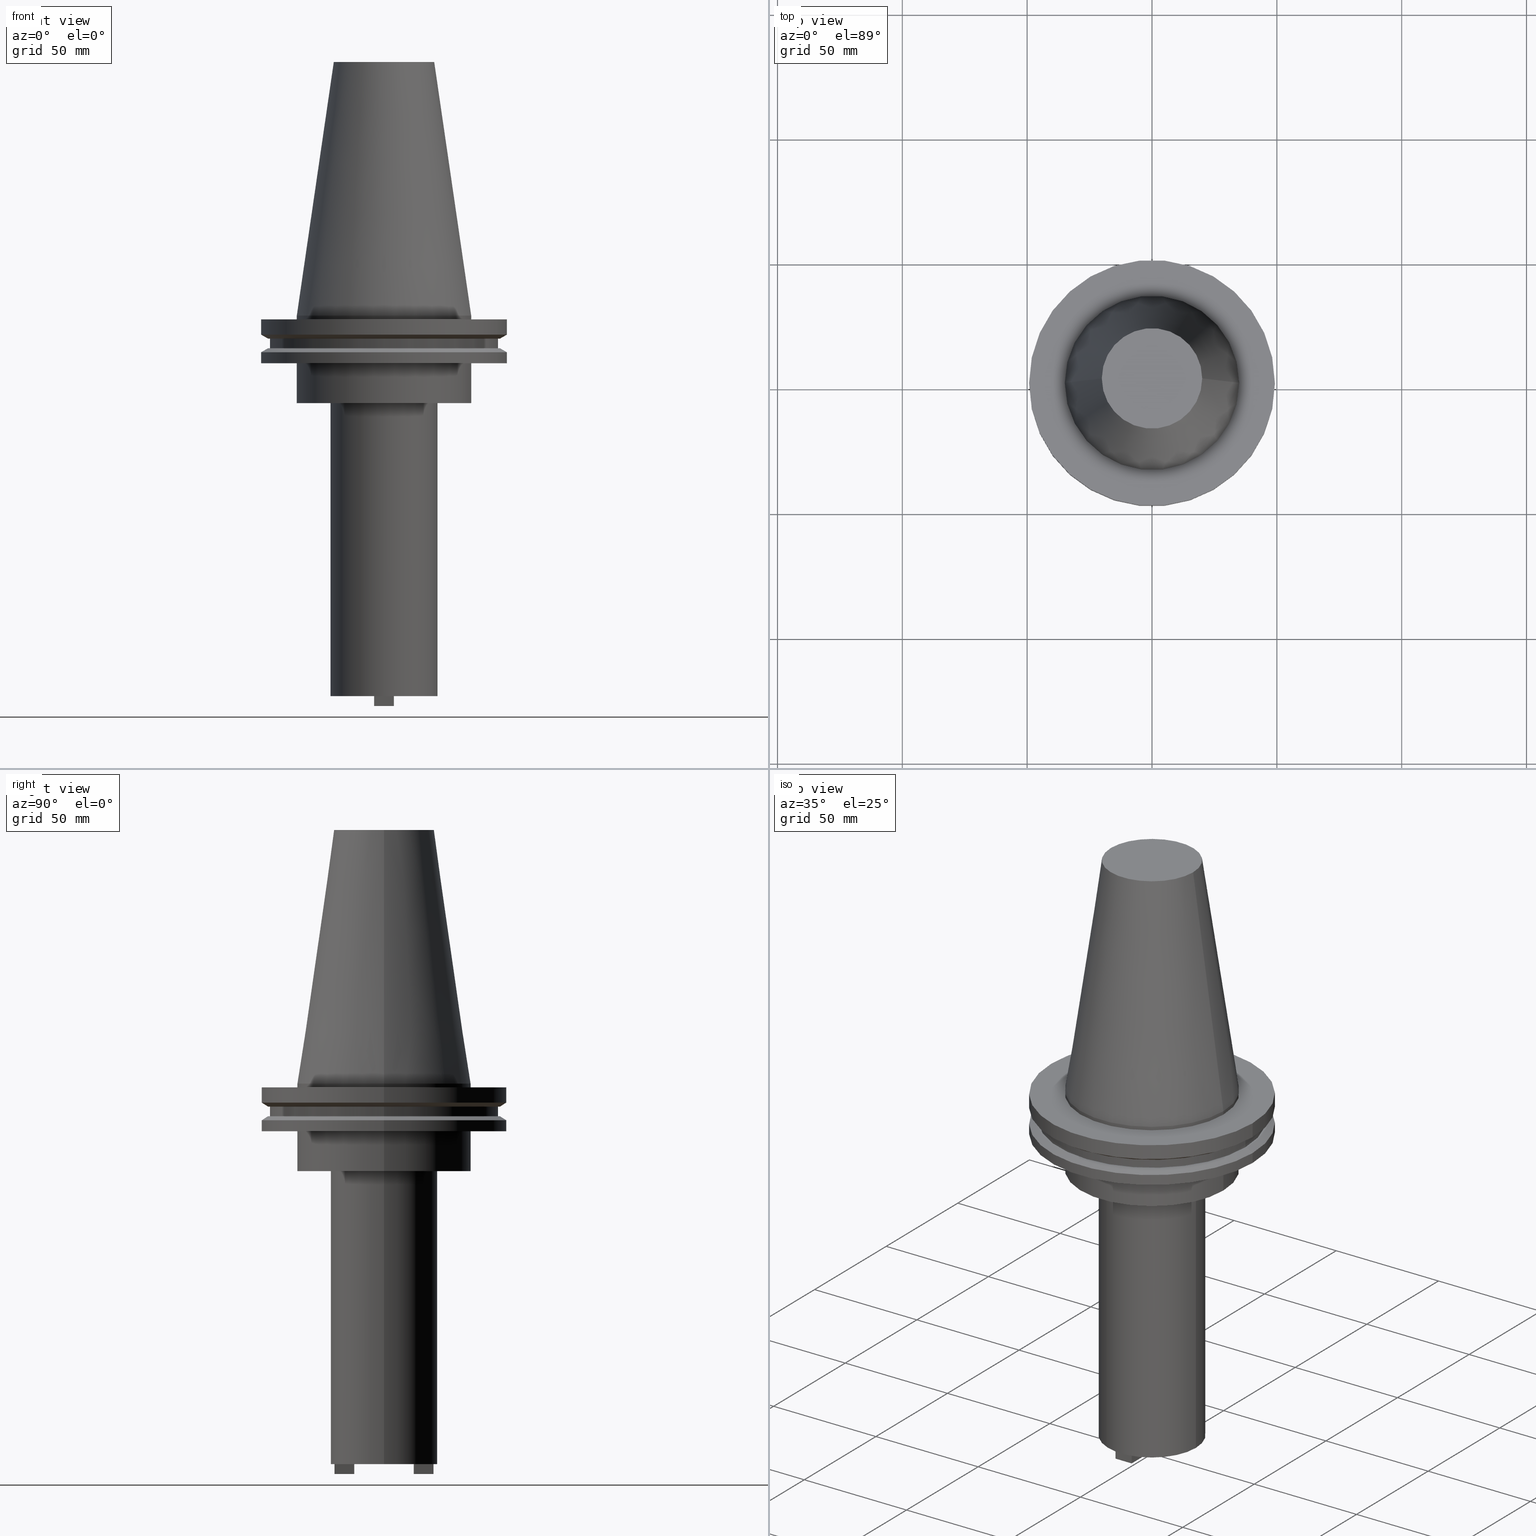
[diagram: canonical four-view strip — front | top / right | iso, engineering-drawing reading convention]
A machine part, canonical four-view strip (front | top / right | iso — engineering-drawing reading convention). The complete STEP part file that produces these views, byte-faithful:
ISO-10303-21;
HEADER;
FILE_DESCRIPTION (( 'STEP AP203' ),
    '1' );
FILE_NAME ('BCV50-SMC_750-6.stp',
    '2022-03-03T19:53:13',
    ( '' ),
    ( '' ),
    'SwSTEP 2.0',
    'SolidWorks 2021',
    '' );
FILE_SCHEMA (( 'CONFIG_CONTROL_DESIGN' ));
ENDSEC;

DATA;
#1 = DIRECTION ( 'NONE',  ( -0.000000000000000000, -0.000000000000000000, 1.000000000000000000 ) ) ;
#2 = VERTEX_POINT ( 'NONE', #259 ) ;
#3 = VERTEX_POINT ( 'NONE', #284 ) ;
#4 = CARTESIAN_POINT ( 'NONE',  ( 0.000000000000000000, 0.000000000000000000, -1.499999999999987566 ) ) ;
#5 = CARTESIAN_POINT ( 'NONE',  ( 0.000000000000000000, 34.92499999999999716, -35.04999999999999716 ) ) ;
#6 = CARTESIAN_POINT ( 'NONE',  ( 0.000000000000000000, 0.000000000000000000, 0.000000000000000000 ) ) ;
#7 = ORIENTED_EDGE ( 'NONE', *, *, #950, .F. ) ;
#8 = DIRECTION ( 'NONE',  ( 1.000000000000000000, 0.000000000000000000, 0.000000000000000000 ) ) ;
#9 = DIRECTION ( 'NONE',  ( -0.000000000000000000, -0.000000000000000000, 1.000000000000000000 ) ) ;
#10 = DIRECTION ( 'NONE',  ( 1.000000000000000000, 0.000000000000000000, 0.000000000000000000 ) ) ;
#11 = APPROVAL_PERSON_ORGANIZATION ( #860, #1043, #439 ) ;
#12 = CARTESIAN_POINT ( 'NONE',  ( 0.000000000000000000, 0.000000000000000000, -19.04999999999999716 ) ) ;
#13 = VERTEX_POINT ( 'NONE', #123 ) ;
#14 = DIRECTION ( 'NONE',  ( -0.000000000000000000, -0.000000000000000000, 1.000000000000000000 ) ) ;
#15 = CIRCLE ( 'NONE', #406, 49.21499999999999631 ) ;
#16 = DIRECTION ( 'NONE',  ( 8.741913579725607786E-16, 1.000000000000000000, 0.000000000000000000 ) ) ;
#17 = AXIS2_PLACEMENT_3D ( 'NONE', #150, #217, #982 ) ;
#18 = EDGE_CURVE ( 'NONE', #642, #450, #582, .T. ) ;
#19 = DATE_AND_TIME ( #865, #619 ) ;
#20 = ORIENTED_EDGE ( 'NONE', *, *, #706, .T. ) ;
#21 = DIRECTION ( 'NONE',  ( -1.748382715945124910E-15, -1.000000000000000000, -0.000000000000000000 ) ) ;
#22 = VERTEX_POINT ( 'NONE', #686 ) ;
#23 = CARTESIAN_POINT ( 'NONE',  ( -49.21499999999999631, 6.027099222003697826E-15, -1.499999999999987566 ) ) ;
#24 = DATE_AND_TIME ( #356, #1052 ) ;
#25 = ORIENTED_EDGE ( 'NONE', *, *, #888, .F. ) ;
#26 = LINE ( 'NONE', #616, #473 ) ;
#27 = CARTESIAN_POINT ( 'NONE',  ( 3.968750000000034639, -11.90625000000000533, -156.3599999999999852 ) ) ;
#28 = VERTEX_POINT ( 'NONE', #416 ) ;
#29 = AXIS2_PLACEMENT_3D ( 'NONE', #1075, #139, #559 ) ;
#30 = CALENDAR_DATE ( 2022, 3, 3 ) ;
#31 = VERTEX_POINT ( 'NONE', #1044 ) ;
#32 = AXIS2_PLACEMENT_3D ( 'NONE', #1078, #332, #256 ) ;
#33 = CARTESIAN_POINT ( 'NONE',  ( 0.000000000000000000, 0.000000000000000000, 101.5999999999999943 ) ) ;
#34 = ADVANCED_FACE ( 'NONE', ( #168 ), #522, .T. ) ;
#35 = DIRECTION ( 'NONE',  ( 1.000000000000000000, 0.000000000000000000, 0.000000000000000000 ) ) ;
#36 = AXIS2_PLACEMENT_3D ( 'NONE', #1049, #251, #752 ) ;
#37 = ORIENTED_EDGE ( 'NONE', *, *, #787, .T. ) ;
#38 = DIRECTION ( 'NONE',  ( -1.000000000000000000, 3.059669752903962577E-15, 0.000000000000000000 ) ) ;
#39 = ORIENTED_EDGE ( 'NONE', *, *, #707, .T. ) ;
#40 = VERTEX_POINT ( 'NONE', #289 ) ;
#41 = ORIENTED_EDGE ( 'NONE', *, *, #198, .F. ) ;
#42 = DIRECTION ( 'NONE',  ( -0.000000000000000000, -0.000000000000000000, 1.000000000000000000 ) ) ;
#43 = ORIENTED_EDGE ( 'NONE', *, *, #378, .F. ) ;
#44 = LINE ( 'NONE', #1015, #873 ) ;
#45 = EDGE_CURVE ( 'NONE', #75, #126, #104, .T. ) ;
#46 = CARTESIAN_POINT ( 'NONE',  ( 21.45029999999999859, 0.000000000000000000, -152.4000000000000057 ) ) ;
#47 = VECTOR ( 'NONE', #571, 1000.000000000000000 ) ;
#48 = VERTEX_POINT ( 'NONE', #776 ) ;
#49 = FACE_OUTER_BOUND ( 'NONE', #60, .T. ) ;
#50 = CARTESIAN_POINT ( 'NONE',  ( 0.000000000000000000, 0.000000000000000000, 101.5999999999999943 ) ) ;
#51 = ORIENTED_EDGE ( 'NONE', *, *, #18, .T. ) ;
#52 = DIRECTION ( 'NONE',  ( -0.000000000000000000, -0.000000000000000000, 1.000000000000000000 ) ) ;
#53 = DATE_AND_TIME ( #466, #758 ) ;
#54 = LINE ( 'NONE', #803, #763 ) ;
#55 = VERTEX_POINT ( 'NONE', #667 ) ;
#56 = FACE_BOUND ( 'NONE', #59, .T. ) ;
#57 = EDGE_CURVE ( 'NONE', #385, #438, #614, .T. ) ;
#58 = FACE_BOUND ( 'NONE', #421, .T. ) ;
#59 = EDGE_LOOP ( 'NONE', ( #810, #402 ) ) ;
#60 = EDGE_LOOP ( 'NONE', ( #953, #972, #469, #361 ) ) ;
#61 = CIRCLE ( 'NONE', #774, 20.10819343178871321 ) ;
#62 = PLANE ( 'NONE',  #294 ) ;
#63 = CIRCLE ( 'NONE', #204, 4.214999999999961666 ) ;
#64 = AXIS2_PLACEMENT_3D ( 'NONE', #676, #1030, #121 ) ;
#65 = CARTESIAN_POINT ( 'NONE',  ( -3.968750000000009770, -19.84375000000001421, -156.3599999999999852 ) ) ;
#66 = ORIENTED_EDGE ( 'NONE', *, *, #766, .F. ) ;
#67 = VECTOR ( 'NONE', #893, 1000.000000000000000 ) ;
#68 = DIRECTION ( 'NONE',  ( 1.000000000000000000, -7.649174382259954761E-16, 0.000000000000000000 ) ) ;
#69 = DIRECTION ( 'NONE',  ( -0.000000000000000000, -0.000000000000000000, 1.000000000000000000 ) ) ;
#70 = VERTEX_POINT ( 'NONE', #964 ) ;
#71 = CARTESIAN_POINT ( 'NONE',  ( 0.000000000000000000, 0.000000000000000000, 0.000000000000000000 ) ) ;
#72 = ADVANCED_FACE ( 'NONE', ( #956, #528 ), #207, .F. ) ;
#73 = CC_DESIGN_PERSON_AND_ORGANIZATION_ASSIGNMENT ( #957, #941, ( #846 ) ) ;
#74 = DIRECTION ( 'NONE',  ( -0.000000000000000000, -0.000000000000000000, 1.000000000000000000 ) ) ;
#75 = VERTEX_POINT ( 'NONE', #449 ) ;
#76 = EDGE_LOOP ( 'NONE', ( #20, #211 ) ) ;
#77 = DIRECTION ( 'NONE',  ( 1.000000000000000000, 0.000000000000000000, 0.000000000000000000 ) ) ;
#78 = DIRECTION ( 'NONE',  ( 1.000000000000000000, 0.000000000000000000, 0.000000000000000000 ) ) ;
#79 = CIRCLE ( 'NONE', #704, 34.92499999999999005 ) ;
#80 = CARTESIAN_POINT ( 'NONE',  ( -20.10819343178871321, 0.000000000000000000, 101.5999999999999801 ) ) ;
#81 = ORIENTED_EDGE ( 'NONE', *, *, #303, .T. ) ;
#82 = ORIENTED_EDGE ( 'NONE', *, *, #707, .F. ) ;
#83 = DIRECTION ( 'NONE',  ( 1.000000000000000000, 0.000000000000000000, 0.000000000000000000 ) ) ;
#84 = CARTESIAN_POINT ( 'NONE',  ( -49.21500000000000341, 6.027099222003699404E-15, -7.602389855251287187 ) ) ;
#85 = EDGE_CURVE ( 'NONE', #126, #75, #688, .T. ) ;
#86 = EDGE_CURVE ( 'NONE', #157, #911, #44, .T. ) ;
#87 = DIRECTION ( 'NONE',  ( 7.649174382259953775E-16, 1.000000000000000000, -0.000000000000000000 ) ) ;
#88 = VERTEX_POINT ( 'NONE', #627 ) ;
#89 = VERTEX_POINT ( 'NONE', #643 ) ;
#90 = CYLINDRICAL_SURFACE ( 'NONE', #812, 34.92499999999999716 ) ;
#91 = CC_DESIGN_PERSON_AND_ORGANIZATION_ASSIGNMENT ( #351, #678, ( #467 ) ) ;
#92 = CARTESIAN_POINT ( 'NONE',  ( -3.968750000000007105, 19.84375000000000000, -156.3599999999999852 ) ) ;
#93 = DIRECTION ( 'NONE',  ( 1.000000000000000000, 0.000000000000000000, 0.000000000000000000 ) ) ;
#94 = ORIENTED_EDGE ( 'NONE', *, *, #230, .T. ) ;
#95 = ORIENTED_EDGE ( 'NONE', *, *, #303, .F. ) ;
#96 = CARTESIAN_POINT ( 'NONE',  ( -3.968750000000010658, -11.90625000000000533, -152.4000000000000057 ) ) ;
#97 = ORIENTED_EDGE ( 'NONE', *, *, #696, .F. ) ;
#98 = ADVANCED_FACE ( 'NONE', ( #472 ), #62, .F. ) ;
#99 = DIRECTION ( 'NONE',  ( -0.000000000000000000, -0.000000000000000000, 1.000000000000000000 ) ) ;
#100 = EDGE_CURVE ( 'NONE', #396, #88, #299, .T. ) ;
#101 = PERSON_AND_ORGANIZATION ( #354, #868 ) ;
#102 = EDGE_LOOP ( 'NONE', ( #1059, #880 ) ) ;
#103 = CARTESIAN_POINT ( 'NONE',  ( -3.968750000000007105, 19.84375000000000000, -156.3599999999999852 ) ) ;
#104 = CIRCLE ( 'NONE', #236, 45.64500000000000313 ) ;
#105 = AXIS2_PLACEMENT_3D ( 'NONE', #71, #249, #575 ) ;
#106 = CARTESIAN_POINT ( 'NONE',  ( -46.43919780457007818, 5.857130358318727293E-15, -9.204999999999991189 ) ) ;
#107 = AXIS2_PLACEMENT_3D ( 'NONE', #380, #1064, #723 ) ;
#108 = PERSON_AND_ORGANIZATION_ROLE ( 'classification_officer' ) ;
#109 = LINE ( 'NONE', #861, #712 ) ;
#110 = DIRECTION ( 'NONE',  ( -0.000000000000000000, -0.000000000000000000, 1.000000000000000000 ) ) ;
#111 = EDGE_CURVE ( 'NONE', #314, #660, #393, .T. ) ;
#112 = PRODUCT_DEFINITION ( 'UNKNOWN', '', #467, #479 ) ;
#113 = DIRECTION ( 'NONE',  ( -0.000000000000000000, -0.000000000000000000, 1.000000000000000000 ) ) ;
#114 = DIRECTION ( 'NONE',  ( 1.000000000000000000, -6.556435184794194253E-16, 0.000000000000000000 ) ) ;
#115 = DIRECTION ( 'NONE',  ( 1.000000000000000000, 0.000000000000000000, 0.000000000000000000 ) ) ;
#116 =( GEOMETRIC_REPRESENTATION_CONTEXT ( 3 ) GLOBAL_UNCERTAINTY_ASSIGNED_CONTEXT ( ( #761 ) ) GLOBAL_UNIT_ASSIGNED_CONTEXT ( ( #682, #615, #267 ) ) REPRESENTATION_CONTEXT ( 'NONE', 'WORKASPACE' ) );
#117 = COORDINATED_UNIVERSAL_TIME_OFFSET ( 6, 0, .BEHIND. ) ;
#118 = CARTESIAN_POINT ( 'NONE',  ( 0.000000000000000000, 0.000000000000000000, 0.000000000000000000 ) ) ;
#119 = EDGE_LOOP ( 'NONE', ( #503, #140, #730, #995 ) ) ;
#120 = CIRCLE ( 'NONE', #742, 49.21499999999998920 ) ;
#121 = DIRECTION ( 'NONE',  ( 1.000000000000000000, 0.000000000000000000, 0.000000000000000000 ) ) ;
#122 = VECTOR ( 'NONE', #928, 1000.000000000000000 ) ;
#123 = CARTESIAN_POINT ( 'NONE',  ( -45.64500000000000313, 5.589900314708094957E-15, -13.05499999999999794 ) ) ;
#124 = COORDINATED_UNIVERSAL_TIME_OFFSET ( 6, 0, .BEHIND. ) ;
#125 = FACE_OUTER_BOUND ( 'NONE', #746, .T. ) ;
#126 = VERTEX_POINT ( 'NONE', #1063 ) ;
#127 = DIRECTION ( 'NONE',  ( 1.000000000000000000, 0.000000000000000000, 0.000000000000000000 ) ) ;
#128 = DIRECTION ( 'NONE',  ( 1.000000000000000000, 0.000000000000000000, 0.000000000000000000 ) ) ;
#129 = EDGE_LOOP ( 'NONE', ( #391, #591, #497, #942 ) ) ;
#130 = PLANE ( 'NONE',  #811 ) ;
#131 = DIRECTION ( 'NONE',  ( 1.000000000000000000, 0.000000000000000000, 0.000000000000000000 ) ) ;
#132 = ORIENTED_EDGE ( 'NONE', *, *, #442, .T. ) ;
#133 = LINE ( 'NONE', #1066, #854 ) ;
#134 = AXIS2_PLACEMENT_3D ( 'NONE', #551, #630, #985 ) ;
#135 = AXIS2_PLACEMENT_3D ( 'NONE', #252, #579, #913 ) ;
#136 = CARTESIAN_POINT ( 'NONE',  ( 0.000000000000000000, 49.21499999999999631, -1.499999999999992895 ) ) ;
#137 = ORIENTED_EDGE ( 'NONE', *, *, #984, .T. ) ;
#138 = CARTESIAN_POINT ( 'NONE',  ( 3.968749999999996447, 19.84374999999998579, -156.3599999999999852 ) ) ;
#139 = DIRECTION ( 'NONE',  ( -0.000000000000000000, -0.000000000000000000, 1.000000000000000000 ) ) ;
#140 = ORIENTED_EDGE ( 'NONE', *, *, #696, .T. ) ;
#141 = EDGE_CURVE ( 'NONE', #2, #126, #133, .T. ) ;
#142 = DIRECTION ( 'NONE',  ( -1.000000000000000000, 0.000000000000000000, 0.000000000000000000 ) ) ;
#143 = DIRECTION ( 'NONE',  ( -0.000000000000000000, -0.000000000000000000, 1.000000000000000000 ) ) ;
#144 = ORIENTED_EDGE ( 'NONE', *, *, #782, .F. ) ;
#145 = AXIS2_PLACEMENT_3D ( 'NONE', #50, #313, #131 ) ;
#146 = CARTESIAN_POINT ( 'NONE',  ( 0.000000000000000000, 0.000000000000000000, 101.5999999999999943 ) ) ;
#147 = CIRCLE ( 'NONE', #134, 45.64500000000000313 ) ;
#148 = ADVANCED_FACE ( 'NONE', ( #633 ), #311, .T. ) ;
#149 = CIRCLE ( 'NONE', #428, 34.92499999999999005 ) ;
#150 = CARTESIAN_POINT ( 'NONE',  ( 0.000000000000000000, 20.10819343178871321, 101.5999999999999943 ) ) ;
#151 = EDGE_LOOP ( 'NONE', ( #97, #1022, #983, #340 ) ) ;
#152 = VECTOR ( 'NONE', #21, 1000.000000000000000 ) ;
#153 = CARTESIAN_POINT ( 'NONE',  ( 0.000000000000000000, 0.000000000000000000, -19.04999999999999716 ) ) ;
#154 = ADVANCED_FACE ( 'NONE', ( #639 ), #275, .T. ) ;
#155 = ADVANCED_FACE ( 'NONE', ( #1055 ), #989, .T. ) ;
#156 = LINE ( 'NONE', #263, #647 ) ;
#157 = VERTEX_POINT ( 'NONE', #221 ) ;
#158 = EDGE_LOOP ( 'NONE', ( #507, #697 ) ) ;
#159 = CARTESIAN_POINT ( 'NONE',  ( 0.000000000000000000, 0.000000000000000000, 101.5999999999999943 ) ) ;
#160 = DIRECTION ( 'NONE',  ( 1.000000000000000000, 0.000000000000000000, 0.000000000000000000 ) ) ;
#161 = LINE ( 'NONE', #842, #921 ) ;
#162 = EDGE_LOOP ( 'NONE', ( #655, #573, #809, #703 ) ) ;
#163 = EDGE_LOOP ( 'NONE', ( #830, #963, #201, #502 ) ) ;
#164 = LINE ( 'NONE', #260, #186 ) ;
#165 = CIRCLE ( 'NONE', #634, 34.92499999999999716 ) ;
#166 = CARTESIAN_POINT ( 'NONE',  ( -34.92499999999999005, 4.277078946022130098E-15, -1.499999999999987566 ) ) ;
#167 = FACE_OUTER_BOUND ( 'NONE', #617, .T. ) ;
#168 = FACE_OUTER_BOUND ( 'NONE', #323, .T. ) ;
#169 = APPLICATION_CONTEXT ( 'configuration controlled 3d designs of mechanical parts and assemblies' ) ;
#170 = CIRCLE ( 'NONE', #321, 21.45029999999999859 ) ;
#171 = CARTESIAN_POINT ( 'NONE',  ( 46.43919780457007818, 0.000000000000000000, -9.204999999999991189 ) ) ;
#172 = CIRCLE ( 'NONE', #929, 4.214999999999961666 ) ;
#173 = DIRECTION ( 'NONE',  ( 1.000000000000000000, 0.000000000000000000, 0.000000000000000000 ) ) ;
#174 = DIRECTION ( 'NONE',  ( -1.092739197465703315E-16, 1.000000000000000000, 0.000000000000000000 ) ) ;
#175 = EDGE_LOOP ( 'NONE', ( #740, #608, #843, #1053 ) ) ;
#176 = ORIENTED_EDGE ( 'NONE', *, *, #677, .F. ) ;
#177 = LINE ( 'NONE', #831, #359 ) ;
#178 = EDGE_LOOP ( 'NONE', ( #747, #917 ) ) ;
#179 = CARTESIAN_POINT ( 'NONE',  ( 0.000000000000000000, 0.000000000000000000, -35.04999999999999716 ) ) ;
#180 = APPROVAL_DATE_TIME ( #518, #974 ) ;
#181 = ORIENTED_EDGE ( 'NONE', *, *, #443, .T. ) ;
#182 = CARTESIAN_POINT ( 'NONE',  ( 3.968749999999996447, 19.84374999999998579, -156.3599999999999852 ) ) ;
#183 = FACE_OUTER_BOUND ( 'NONE', #129, .T. ) ;
#184 = DIRECTION ( 'NONE',  ( -0.000000000000000000, -0.000000000000000000, 1.000000000000000000 ) ) ;
#185 = ORIENTED_EDGE ( 'NONE', *, *, #394, .T. ) ;
#186 = VECTOR ( 'NONE', #498, 1000.000000000000000 ) ;
#187 = LINE ( 'NONE', #526, #261 ) ;
#188 = APPROVAL_ROLE ( '' ) ;
#189 = VERTEX_POINT ( 'NONE', #792 ) ;
#190 = DIRECTION ( 'NONE',  ( -0.000000000000000000, -0.000000000000000000, 1.000000000000000000 ) ) ;
#191 = CARTESIAN_POINT ( 'NONE',  ( 0.000000000000000000, 0.000000000000000000, 0.000000000000000000 ) ) ;
#192 = DIRECTION ( 'NONE',  ( -0.000000000000000000, -0.000000000000000000, 1.000000000000000000 ) ) ;
#193 = ORIENTED_EDGE ( 'NONE', *, *, #891, .T. ) ;
#194 = FACE_OUTER_BOUND ( 'NONE', #364, .T. ) ;
#195 = PLANE ( 'NONE',  #458 ) ;
#196 = ADVANCED_FACE ( 'NONE', ( #1069 ), #130, .F. ) ;
#197 = VERTEX_POINT ( 'NONE', #462 ) ;
#198 = EDGE_CURVE ( 'NONE', #2, #13, #147, .T. ) ;
#199 = CC_DESIGN_APPROVAL ( #974, ( #112 ) ) ;
#200 = PERSON_AND_ORGANIZATION ( #354, #868 ) ;
#201 = ORIENTED_EDGE ( 'NONE', *, *, #819, .T. ) ;
#202 = DIRECTION ( 'NONE',  ( -0.8660254037844273833, 1.060575238724893110E-16, 0.5000000000000195399 ) ) ;
#203 = VERTEX_POINT ( 'NONE', #226 ) ;
#204 = AXIS2_PLACEMENT_3D ( 'NONE', #179, #914, #160 ) ;
#205 = APPLICATION_CONTEXT ( 'configuration controlled 3d designs of mechanical parts and assemblies' ) ;
#206 = AXIS2_PLACEMENT_3D ( 'NONE', #159, #491, #748 ) ;
#207 = PLANE ( 'NONE',  #426 ) ;
#208 = VECTOR ( 'NONE', #273, 1000.000000000000000 ) ;
#209 = ADVANCED_FACE ( 'NONE', ( #387 ), #216, .F. ) ;
#210 = CARTESIAN_POINT ( 'NONE',  ( 21.45029999999999859, 0.000000000000000000, -35.04999999999999716 ) ) ;
#211 = ORIENTED_EDGE ( 'NONE', *, *, #973, .T. ) ;
#212 = ADVANCED_FACE ( 'NONE', ( #213 ), #903, .F. ) ;
#213 = FACE_OUTER_BOUND ( 'NONE', #324, .T. ) ;
#214 = LINE ( 'NONE', #543, #424 ) ;
#215 = ORIENTED_EDGE ( 'NONE', *, *, #394, .F. ) ;
#216 = PLANE ( 'NONE',  #637 ) ;
#217 = DIRECTION ( 'NONE',  ( 0.000000000000000000, 0.000000000000000000, -1.000000000000000000 ) ) ;
#218 = ADVANCED_FACE ( 'NONE', ( #885, #56 ), #899, .F. ) ;
#219 = CC_DESIGN_SECURITY_CLASSIFICATION ( #1081, ( #467 ) ) ;
#220 = ORIENTED_EDGE ( 'NONE', *, *, #1042, .F. ) ;
#221 = CARTESIAN_POINT ( 'NONE',  ( 20.10819343178871321, 3.369811209154858606E-15, 101.5999999999999801 ) ) ;
#222 = ADVANCED_FACE ( 'NONE', ( #49 ), #721, .T. ) ;
#223 = AXIS2_PLACEMENT_3D ( 'NONE', #242, #918, #83 ) ;
#224 = FACE_OUTER_BOUND ( 'NONE', #423, .T. ) ;
#225 = ORIENTED_EDGE ( 'NONE', *, *, #477, .T. ) ;
#226 = CARTESIAN_POINT ( 'NONE',  ( -34.92499999999999716, 4.277078946022130887E-15, -35.04999999999999716 ) ) ;
#227 = DIRECTION ( 'NONE',  ( -1.000000000000000000, 0.000000000000000000, -0.000000000000000000 ) ) ;
#228 = ORIENTED_EDGE ( 'NONE', *, *, #443, .F. ) ;
#229 = ORIENTED_EDGE ( 'NONE', *, *, #345, .T. ) ;
#230 = EDGE_CURVE ( 'NONE', #1027, #31, #505, .T. ) ;
#231 = CARTESIAN_POINT ( 'NONE',  ( -21.45029999999999859, 2.626904123575046818E-15, 0.000000000000000000 ) ) ;
#232 = FACE_OUTER_BOUND ( 'NONE', #76, .T. ) ;
#233 = EDGE_LOOP ( 'NONE', ( #310, #948 ) ) ;
#234 = AXIS2_PLACEMENT_3D ( 'NONE', #745, #821, #400 ) ;
#235 = DIRECTION ( 'NONE',  ( -0.000000000000000000, -0.000000000000000000, 1.000000000000000000 ) ) ;
#236 = AXIS2_PLACEMENT_3D ( 'NONE', #1037, #192, #8 ) ;
#237 = CIRCLE ( 'NONE', #514, 46.43919780457007818 ) ;
#238 = CARTESIAN_POINT ( 'NONE',  ( -34.92499999999999005, 0.000000000000000000, 0.000000000000000000 ) ) ;
#239 = ORIENTED_EDGE ( 'NONE', *, *, #732, .T. ) ;
#240 = ORIENTED_EDGE ( 'NONE', *, *, #486, .T. ) ;
#241 = AXIS2_PLACEMENT_3D ( 'NONE', #1067, #390, #789 ) ;
#242 = CARTESIAN_POINT ( 'NONE',  ( 0.000000000000000000, 0.000000000000000000, 0.000000000000000000 ) ) ;
#243 = LINE ( 'NONE', #320, #965 ) ;
#244 = LINE ( 'NONE', #238, #684 ) ;
#245 = ORIENTED_EDGE ( 'NONE', *, *, #1048, .T. ) ;
#246 = ORIENTED_EDGE ( 'NONE', *, *, #412, .F. ) ;
#247 = CYLINDRICAL_SURFACE ( 'NONE', #223, 4.214999999999984759 ) ;
#248 = ADVANCED_FACE ( 'NONE', ( #326 ), #793, .T. ) ;
#249 = DIRECTION ( 'NONE',  ( -0.000000000000000000, -0.000000000000000000, 1.000000000000000000 ) ) ;
#250 = DIRECTION ( 'NONE',  ( -0.1443082272672999988, 0.000000000000000000, -0.9895327864921755756 ) ) ;
#251 = DIRECTION ( 'NONE',  ( -0.000000000000000000, -0.000000000000000000, 1.000000000000000000 ) ) ;
#252 = CARTESIAN_POINT ( 'NONE',  ( 0.000000000000000000, 45.64500000000000313, -13.05499999999999794 ) ) ;
#253 = AXIS2_PLACEMENT_3D ( 'NONE', #316, #910, #488 ) ;
#254 = CARTESIAN_POINT ( 'NONE',  ( 0.000000000000000000, 0.000000000000000000, -35.04999999999999716 ) ) ;
#255 = EDGE_CURVE ( 'NONE', #898, #756, #243, .T. ) ;
#256 = DIRECTION ( 'NONE',  ( 1.000000000000000000, 0.000000000000000000, 0.000000000000000000 ) ) ;
#257 = AXIS2_PLACEMENT_3D ( 'NONE', #731, #492, #1089 ) ;
#258 = ORIENTED_EDGE ( 'NONE', *, *, #86, .T. ) ;
#259 = CARTESIAN_POINT ( 'NONE',  ( 45.64500000000000313, 0.000000000000000000, -13.05499999999999794 ) ) ;
#260 = CARTESIAN_POINT ( 'NONE',  ( -3.968750000000007105, 19.84375000000000000, -156.3599999999999852 ) ) ;
#261 = VECTOR ( 'NONE', #940, 1000.000000000000000 ) ;
#262 = FACE_OUTER_BOUND ( 'NONE', #175, .T. ) ;
#263 = CARTESIAN_POINT ( 'NONE',  ( -34.92499999999999005, 4.277078946022130098E-15, 101.5999999999999943 ) ) ;
#264 = EDGE_LOOP ( 'NONE', ( #705, #371, #751, #302 ) ) ;
#265 = CYLINDRICAL_SURFACE ( 'NONE', #407, 49.21499999999999631 ) ;
#266 = DIRECTION ( 'NONE',  ( 1.000000000000000000, 0.000000000000000000, 0.000000000000000000 ) ) ;
#267 =( NAMED_UNIT ( * ) SI_UNIT ( $, .STERADIAN. ) SOLID_ANGLE_UNIT ( ) );
#268 = CYLINDRICAL_SURFACE ( 'NONE', #877, 34.92499999999999716 ) ;
#269 = EDGE_LOOP ( 'NONE', ( #532, #496, #317, #490 ) ) ;
#270 = EDGE_CURVE ( 'NONE', #778, #660, #170, .T. ) ;
#271 = DIRECTION ( 'NONE',  ( -0.000000000000000000, -0.000000000000000000, 1.000000000000000000 ) ) ;
#272 = PERSON_AND_ORGANIZATION ( #354, #868 ) ;
#273 = DIRECTION ( 'NONE',  ( -0.000000000000000000, -0.000000000000000000, 1.000000000000000000 ) ) ;
#274 = ORIENTED_EDGE ( 'NONE', *, *, #111, .F. ) ;
#275 = CONICAL_SURFACE ( 'NONE', #358, 46.43919780457007818, 1.047197551196575205 ) ;
#276 = AXIS2_PLACEMENT_3D ( 'NONE', #692, #271, #445 ) ;
#277 = CARTESIAN_POINT ( 'NONE',  ( 0.000000000000000000, 0.000000000000000000, -152.4000000000000057 ) ) ;
#278 = ORIENTED_EDGE ( 'NONE', *, *, #230, .F. ) ;
#279 = DATE_TIME_ROLE ( 'classification_date' ) ;
#280 = ORIENTED_EDGE ( 'NONE', *, *, #958, .F. ) ;
#281 = CARTESIAN_POINT ( 'NONE',  ( 3.968750000000017319, 11.90624999999999289, -152.4000000000000057 ) ) ;
#282 = EDGE_CURVE ( 'NONE', #805, #88, #946, .T. ) ;
#283 = FACE_OUTER_BOUND ( 'NONE', #489, .T. ) ;
#284 = CARTESIAN_POINT ( 'NONE',  ( 3.968750000000020872, -19.84375000000001776, -152.4000000000000057 ) ) ;
#285 = EDGE_CURVE ( 'NONE', #189, #1008, #581, .T. ) ;
#286 = DATE_AND_TIME ( #30, #510 ) ;
#287 = CARTESIAN_POINT ( 'NONE',  ( 0.000000000000000000, 0.000000000000000000, -35.04999999999999716 ) ) ;
#288 = ORIENTED_EDGE ( 'NONE', *, *, #270, .T. ) ;
#289 = CARTESIAN_POINT ( 'NONE',  ( 34.92499999999999716, 0.000000000000000000, -35.04999999999999716 ) ) ;
#290 = APPLICATION_PROTOCOL_DEFINITION ( 'international standard', 'config_control_design', 1994, #169 ) ;
#291 = ADVANCED_FACE ( 'NONE', ( #840 ), #457, .T. ) ;
#292 = CARTESIAN_POINT ( 'NONE',  ( -3.968750000000009770, -19.84375000000001421, -156.3599999999999852 ) ) ;
#293 = EDGE_LOOP ( 'NONE', ( #693, #1068 ) ) ;
#294 = AXIS2_PLACEMENT_3D ( 'NONE', #545, #68, #975 ) ;
#295 = CIRCLE ( 'NONE', #276, 4.215000000000006075 ) ;
#296 = DIRECTION ( 'NONE',  ( 1.000000000000000000, 0.000000000000000000, 0.000000000000000000 ) ) ;
#297 = DIRECTION ( 'NONE',  ( -0.000000000000000000, -0.000000000000000000, 1.000000000000000000 ) ) ;
#298 = ORIENTED_EDGE ( 'NONE', *, *, #874, .T. ) ;
#299 = LINE ( 'NONE', #814, #708 ) ;
#300 = EDGE_CURVE ( 'NONE', #28, #381, #418, .T. ) ;
#301 = DIRECTION ( 'NONE',  ( 2.622574073917694662E-15, -1.000000000000000000, 0.000000000000000000 ) ) ;
#302 = ORIENTED_EDGE ( 'NONE', *, *, #1029, .T. ) ;
#303 = EDGE_CURVE ( 'NONE', #48, #55, #120, .T. ) ;
#304 = EDGE_CURVE ( 'NONE', #764, #636, #920, .T. ) ;
#305 = DIRECTION ( 'NONE',  ( -0.000000000000000000, -0.000000000000000000, 1.000000000000000000 ) ) ;
#306 = CARTESIAN_POINT ( 'NONE',  ( 0.000000000000000000, 0.000000000000000000, -19.04999999999999716 ) ) ;
#307 = ORIENTED_EDGE ( 'NONE', *, *, #541, .T. ) ;
#308 = DIRECTION ( 'NONE',  ( -0.000000000000000000, -0.000000000000000000, 1.000000000000000000 ) ) ;
#309 = PLANE ( 'NONE',  #534 ) ;
#310 = ORIENTED_EDGE ( 'NONE', *, *, #85, .T. ) ;
#311 = PLANE ( 'NONE',  #372 ) ;
#312 = ADVANCED_FACE ( 'NONE', ( #1005, #1019, #999, #934 ), #992, .F. ) ;
#313 = DIRECTION ( 'NONE',  ( -0.000000000000000000, -0.000000000000000000, 1.000000000000000000 ) ) ;
#314 = VERTEX_POINT ( 'NONE', #670 ) ;
#315 = DIRECTION ( 'NONE',  ( -0.000000000000000000, -0.000000000000000000, 1.000000000000000000 ) ) ;
#316 = CARTESIAN_POINT ( 'NONE',  ( 0.000000000000000000, 0.000000000000000000, -35.04999999999999716 ) ) ;
#317 = ORIENTED_EDGE ( 'NONE', *, *, #907, .F. ) ;
#318 = EDGE_CURVE ( 'NONE', #381, #476, #63, .T. ) ;
#319 = LINE ( 'NONE', #661, #341 ) ;
#320 = CARTESIAN_POINT ( 'NONE',  ( 3.968750000000034639, -11.90625000000000533, -156.3599999999999852 ) ) ;
#321 = AXIS2_PLACEMENT_3D ( 'NONE', #254, #413, #173 ) ;
#322 = CARTESIAN_POINT ( 'NONE',  ( 0.000000000000000000, 0.000000000000000000, -9.204999999999991189 ) ) ;
#323 = EDGE_LOOP ( 'NONE', ( #144, #1084, #822, #536 ) ) ;
#324 = EDGE_LOOP ( 'NONE', ( #566, #66, #25, #298 ) ) ;
#325 = CARTESIAN_POINT ( 'NONE',  ( 0.000000000000000000, 0.000000000000000000, -14.65761014474876944 ) ) ;
#326 = FACE_OUTER_BOUND ( 'NONE', #368, .T. ) ;
#327 = DIRECTION ( 'NONE',  ( 1.000000000000000000, 0.000000000000000000, 0.000000000000000000 ) ) ;
#328 = ORIENTED_EDGE ( 'NONE', *, *, #477, .F. ) ;
#329 = VERTEX_POINT ( 'NONE', #561 ) ;
#330 = FACE_OUTER_BOUND ( 'NONE', #969, .T. ) ;
#331 = DIRECTION ( 'NONE',  ( 1.000000000000000000, 0.000000000000000000, 0.000000000000000000 ) ) ;
#332 = DIRECTION ( 'NONE',  ( -0.000000000000000000, -0.000000000000000000, 1.000000000000000000 ) ) ;
#333 = ORIENTED_EDGE ( 'NONE', *, *, #111, .T. ) ;
#334 = ORIENTED_EDGE ( 'NONE', *, *, #640, .F. ) ;
#335 = DIRECTION ( 'NONE',  ( 1.000000000000000000, -6.556435184794194253E-16, -0.000000000000000000 ) ) ;
#336 = VECTOR ( 'NONE', #408, 1000.000000000000000 ) ;
#337 = DIRECTION ( 'NONE',  ( 7.649174382259953775E-16, 1.000000000000000000, -0.000000000000000000 ) ) ;
#338 = CARTESIAN_POINT ( 'NONE',  ( -3.968750000000009770, -19.84375000000001421, -156.3599999999999852 ) ) ;
#339 = AXIS2_PLACEMENT_3D ( 'NONE', #146, #308, #375 ) ;
#340 = ORIENTED_EDGE ( 'NONE', *, *, #593, .T. ) ;
#341 = VECTOR ( 'NONE', #675, 1000.000000000000000 ) ;
#342 = FACE_OUTER_BOUND ( 'NONE', #645, .T. ) ;
#343 = VECTOR ( 'NONE', #701, 1000.000000000000000 ) ;
#344 = DIRECTION ( 'NONE',  ( -1.000000000000000000, 8.741913579725607786E-16, 0.000000000000000000 ) ) ;
#345 = EDGE_CURVE ( 'NONE', #31, #438, #15, .T. ) ;
#346 = APPROVAL_DATE_TIME ( #19, #1043 ) ;
#347 = ORIENTED_EDGE ( 'NONE', *, *, #732, .F. ) ;
#348 = ADVANCED_FACE ( 'NONE', ( #262 ), #589, .F. ) ;
#349 = CYLINDRICAL_SURFACE ( 'NONE', #856, 49.21499999999998920 ) ;
#350 = CARTESIAN_POINT ( 'NONE',  ( -34.92499999999999005, 0.000000000000000000, 0.000000000000000000 ) ) ;
#351 = PERSON_AND_ORGANIZATION ( #354, #868 ) ;
#352 = DIRECTION ( 'NONE',  ( -0.000000000000000000, -0.000000000000000000, 1.000000000000000000 ) ) ;
#353 = CARTESIAN_POINT ( 'NONE',  ( -4.214999999999961666, 5.161886258406061014E-16, -35.04999999999999716 ) ) ;
#354 = PERSON ( 'UNSPECIFIED', 'UNSPECIFIED', 'UNSPECIFIED', ('UNSPECIFIED'), ('UNSPECIFIED'), ('UNSPECIFIED') ) ;
#355 = CARTESIAN_POINT ( 'NONE',  ( 0.000000000000000000, 0.000000000000000000, -9.204999999999991189 ) ) ;
#356 = CALENDAR_DATE ( 2022, 3, 3 ) ;
#357 = LINE ( 'NONE', #683, #562 ) ;
#358 = AXIS2_PLACEMENT_3D ( 'NONE', #459, #52, #980 ) ;
#359 = VECTOR ( 'NONE', #335, 1000.000000000000000 ) ;
#360 = FACE_OUTER_BOUND ( 'NONE', #269, .T. ) ;
#361 = ORIENTED_EDGE ( 'NONE', *, *, #141, .F. ) ;
#362 = DIRECTION ( 'NONE',  ( -0.000000000000000000, -0.000000000000000000, 1.000000000000000000 ) ) ;
#363 = VERTEX_POINT ( 'NONE', #166 ) ;
#364 = EDGE_LOOP ( 'NONE', ( #307, #553, #377, #410 ) ) ;
#365 = DIRECTION ( 'NONE',  ( 0.000000000000000000, 0.000000000000000000, 1.000000000000000000 ) ) ;
#366 = CARTESIAN_POINT ( 'NONE',  ( 3.968750000000017319, 11.90624999999999289, -156.3599999999999852 ) ) ;
#367 = EDGE_LOOP ( 'NONE', ( #1072, #577, #94, #912 ) ) ;
#368 = EDGE_LOOP ( 'NONE', ( #427, #916, #988, #626 ) ) ;
#369 = LOCAL_TIME ( 13, 53, 13.00000000000000000, #621 ) ;
#370 = DIRECTION ( 'NONE',  ( 1.000000000000000000, 0.000000000000000000, 0.000000000000000000 ) ) ;
#371 = ORIENTED_EDGE ( 'NONE', *, *, #509, .T. ) ;
#372 = AXIS2_PLACEMENT_3D ( 'NONE', #970, #558, #142 ) ;
#373 = ADVANCED_FACE ( 'NONE', ( #478 ), #818, .F. ) ;
#374 = CIRCLE ( 'NONE', #105, 34.92499999999999005 ) ;
#375 = DIRECTION ( 'NONE',  ( 1.000000000000000000, 0.000000000000000000, 0.000000000000000000 ) ) ;
#376 = DIRECTION ( 'NONE',  ( -1.000000000000000000, 8.741913579725607786E-16, 0.000000000000000000 ) ) ;
#377 = ORIENTED_EDGE ( 'NONE', *, *, #984, .F. ) ;
#378 = EDGE_CURVE ( 'NONE', #409, #911, #374, .T. ) ;
#379 = CARTESIAN_POINT ( 'NONE',  ( 3.968749999999996447, 19.84374999999998579, -156.3599999999999852 ) ) ;
#380 = CARTESIAN_POINT ( 'NONE',  ( 0.000000000000000000, 0.000000000000000000, -13.05499999999999794 ) ) ;
#381 = VERTEX_POINT ( 'NONE', #833 ) ;
#382 = DIRECTION ( 'NONE',  ( 0.000000000000000000, -0.000000000000000000, 1.000000000000000000 ) ) ;
#383 = CIRCLE ( 'NONE', #807, 21.45029999999999859 ) ;
#384 = FACE_OUTER_BOUND ( 'NONE', #102, .T. ) ;
#385 = VERTEX_POINT ( 'NONE', #84 ) ;
#386 = VECTOR ( 'NONE', #99, 1000.000000000000000 ) ;
#387 = FACE_OUTER_BOUND ( 'NONE', #539, .T. ) ;
#388 = VECTOR ( 'NONE', #1025, 1000.000000000000000 ) ;
#389 = VECTOR ( 'NONE', #597, 1000.000000000000000 ) ;
#390 = DIRECTION ( 'NONE',  ( -0.000000000000000000, -0.000000000000000000, 1.000000000000000000 ) ) ;
#391 = ORIENTED_EDGE ( 'NONE', *, *, #524, .T. ) ;
#392 = EDGE_CURVE ( 'NONE', #89, #476, #187, .T. ) ;
#393 = LINE ( 'NONE', #231, #549 ) ;
#394 = EDGE_CURVE ( 'NONE', #884, #911, #680, .T. ) ;
#395 = LINE ( 'NONE', #414, #961 ) ;
#396 = VERTEX_POINT ( 'NONE', #1041 ) ;
#397 = PRODUCT_DEFINITION_SHAPE ( 'NONE', 'NONE',  #112 ) ;
#398 = CARTESIAN_POINT ( 'NONE',  ( 4.214999999999984759, 0.000000000000000000, 0.000000000000000000 ) ) ;
#399 = EDGE_CURVE ( 'NONE', #28, #89, #725, .T. ) ;
#400 = DIRECTION ( 'NONE',  ( 1.000000000000000000, 0.000000000000000000, 0.000000000000000000 ) ) ;
#401 = ORIENTED_EDGE ( 'NONE', *, *, #557, .T. ) ;
#402 = ORIENTED_EDGE ( 'NONE', *, *, #285, .T. ) ;
#403 = DIRECTION ( 'NONE',  ( 1.000000000000000000, -1.748382715945127671E-15, -0.000000000000000000 ) ) ;
#404 = AXIS2_PLACEMENT_3D ( 'NONE', #1082, #734, #93 ) ;
#405 = CARTESIAN_POINT ( 'NONE',  ( 0.000000000000000000, 21.45029999999999859, -152.4000000000000057 ) ) ;
#406 = AXIS2_PLACEMENT_3D ( 'NONE', #743, #315, #646 ) ;
#407 = AXIS2_PLACEMENT_3D ( 'NONE', #592, #411, #938 ) ;
#408 = DIRECTION ( 'NONE',  ( -1.000000000000000000, 3.059669752903962577E-15, 0.000000000000000000 ) ) ;
#409 = VERTEX_POINT ( 'NONE', #350 ) ;
#410 = ORIENTED_EDGE ( 'NONE', *, *, #733, .T. ) ;
#411 = DIRECTION ( 'NONE',  ( -0.000000000000000000, -0.000000000000000000, 1.000000000000000000 ) ) ;
#412 = EDGE_CURVE ( 'NONE', #314, #836, #855, .T. ) ;
#413 = DIRECTION ( 'NONE',  ( -0.000000000000000000, -0.000000000000000000, 1.000000000000000000 ) ) ;
#414 = CARTESIAN_POINT ( 'NONE',  ( -3.968750000000012879, 11.90625000000001776, -156.3599999999999852 ) ) ;
#415 = ORIENTED_EDGE ( 'NONE', *, *, #801, .F. ) ;
#416 = CARTESIAN_POINT ( 'NONE',  ( 4.215000000000006075, 0.000000000000000000, -152.4000000000000057 ) ) ;
#417 = CARTESIAN_POINT ( 'NONE',  ( 3.968750000000020872, -19.84375000000002132, -152.4000000000000057 ) ) ;
#418 = LINE ( 'NONE', #398, #122 ) ;
#419 = CARTESIAN_POINT ( 'NONE',  ( 3.968749999999996447, 19.84374999999998579, -152.4000000000000057 ) ) ;
#420 = EDGE_LOOP ( 'NONE', ( #41, #781 ) ) ;
#421 = EDGE_LOOP ( 'NONE', ( #288, #1065 ) ) ;
#422 = DIRECTION ( 'NONE',  ( 1.000000000000000000, 0.000000000000000000, 0.000000000000000000 ) ) ;
#423 = EDGE_LOOP ( 'NONE', ( #220, #1039, #185, #43 ) ) ;
#424 = VECTOR ( 'NONE', #376, 1000.000000000000000 ) ;
#425 = DIRECTION ( 'NONE',  ( 1.000000000000000000, 0.000000000000000000, 0.000000000000000000 ) ) ;
#426 = AXIS2_PLACEMENT_3D ( 'NONE', #924, #872, #127 ) ;
#427 = ORIENTED_EDGE ( 'NONE', *, *, #86, .F. ) ;
#428 = AXIS2_PLACEMENT_3D ( 'NONE', #4, #650, #765 ) ;
#429 = DIRECTION ( 'NONE',  ( -1.748382715945124910E-15, -1.000000000000000000, -0.000000000000000000 ) ) ;
#430 = CIRCLE ( 'NONE', #241, 34.92499999999999716 ) ;
#431 = CARTESIAN_POINT ( 'NONE',  ( 3.968750000000020872, -19.84375000000002132, -156.3599999999999852 ) ) ;
#432 = ADVANCED_FACE ( 'NONE', ( #283 ), #767, .F. ) ;
#433 = CARTESIAN_POINT ( 'NONE',  ( 49.21499999999998920, 6.027099222003697037E-15, -14.65761014474876944 ) ) ;
#434 = DIRECTION ( 'NONE',  ( -1.000000000000000000, 0.000000000000000000, 0.000000000000000000 ) ) ;
#435 = DIRECTION ( 'NONE',  ( 0.8660254037844169472, 1.060575238724880168E-16, -0.5000000000000375255 ) ) ;
#436 = DIRECTION ( 'NONE',  ( -0.000000000000000000, -0.000000000000000000, 1.000000000000000000 ) ) ;
#437 = AXIS2_PLACEMENT_3D ( 'NONE', #6, #506, #523 ) ;
#438 = VERTEX_POINT ( 'NONE', #23 ) ;
#439 = APPROVAL_ROLE ( '' ) ;
#440 = CARTESIAN_POINT ( 'NONE',  ( -46.43919780457007818, 5.687161494633754392E-15, -9.204999999999991189 ) ) ;
#441 = ORIENTED_EDGE ( 'NONE', *, *, #270, .F. ) ;
#442 = EDGE_CURVE ( 'NONE', #1027, #385, #533, .T. ) ;
#443 = EDGE_CURVE ( 'NONE', #89, #28, #295, .T. ) ;
#444 = VECTOR ( 'NONE', #38, 1000.000000000000000 ) ;
#445 = DIRECTION ( 'NONE',  ( 1.000000000000000000, 0.000000000000000000, 0.000000000000000000 ) ) ;
#446 = ORIENTED_EDGE ( 'NONE', *, *, #557, .F. ) ;
#447 = CARTESIAN_POINT ( 'NONE',  ( 0.000000000000000000, 0.000000000000000000, -7.602389855251287187 ) ) ;
#448 = ORIENTED_EDGE ( 'NONE', *, *, #907, .T. ) ;
#449 = CARTESIAN_POINT ( 'NONE',  ( -45.64500000000000313, 5.589900314708094957E-15, -9.204999999999991189 ) ) ;
#450 = VERTEX_POINT ( 'NONE', #106 ) ;
#451 = DIRECTION ( 'NONE',  ( 1.000000000000000000, 0.000000000000000000, 0.000000000000000000 ) ) ;
#452 = ORIENTED_EDGE ( 'NONE', *, *, #919, .F. ) ;
#453 = CARTESIAN_POINT ( 'NONE',  ( 0.000000000000000000, 49.21499999999998920, -19.04999999999999716 ) ) ;
#454 = CC_DESIGN_APPROVAL ( #1043, ( #467 ) ) ;
#455 = PLANE ( 'NONE',  #17 ) ;
#456 = VERTEX_POINT ( 'NONE', #594 ) ;
#457 = CONICAL_SURFACE ( 'NONE', #1085, 49.21499999999998920, 1.047197551196554333 ) ;
#458 = AXIS2_PLACEMENT_3D ( 'NONE', #613, #16, #344 ) ;
#459 = CARTESIAN_POINT ( 'NONE',  ( 0.000000000000000000, 0.000000000000000000, -9.204999999999991189 ) ) ;
#460 = PLANE ( 'NONE',  #813 ) ;
#461 = ORIENTED_EDGE ( 'NONE', *, *, #399, .T. ) ;
#462 = CARTESIAN_POINT ( 'NONE',  ( -3.968750000000009770, -19.84375000000001421, -152.4000000000000057 ) ) ;
#463 = CARTESIAN_POINT ( 'NONE',  ( 3.968749999999996447, 19.84374999999998579, -156.3599999999999852 ) ) ;
#464 = ORIENTED_EDGE ( 'NONE', *, *, #820, .T. ) ;
#465 = DIRECTION ( 'NONE',  ( -0.000000000000000000, -0.000000000000000000, 1.000000000000000000 ) ) ;
#466 = CALENDAR_DATE ( 2022, 3, 3 ) ;
#467 = PRODUCT_DEFINITION_FORMATION_WITH_SPECIFIED_SOURCE ( 'ANY', '', #846, .NOT_KNOWN. ) ;
#468 = DIRECTION ( 'NONE',  ( 0.8660254037844273833, 0.000000000000000000, 0.5000000000000195399 ) ) ;
#469 = ORIENTED_EDGE ( 'NONE', *, *, #85, .F. ) ;
#470 = ADVANCED_FACE ( 'NONE', ( #599 ), #779, .T. ) ;
#471 = AXIS2_PLACEMENT_3D ( 'NONE', #662, #847, #909 ) ;
#472 = FACE_OUTER_BOUND ( 'NONE', #1079, .T. ) ;
#473 = VECTOR ( 'NONE', #42, 1000.000000000000000 ) ;
#474 = CIRCLE ( 'NONE', #908, 49.21499999999998920 ) ;
#475 = CARTESIAN_POINT ( 'NONE',  ( -3.968750000000007105, 19.84375000000000000, -152.4000000000000057 ) ) ;
#476 = VERTEX_POINT ( 'NONE', #353 ) ;
#477 = EDGE_CURVE ( 'NONE', #911, #409, #494, .T. ) ;
#478 = FACE_OUTER_BOUND ( 'NONE', #293, .T. ) ;
#479 = DESIGN_CONTEXT ( 'detailed design', #205, 'design' ) ;
#480 = CARTESIAN_POINT ( 'NONE',  ( 3.968750000000020872, -19.84375000000002132, -156.3599999999999852 ) ) ;
#481 = ORIENTED_EDGE ( 'NONE', *, *, #300, .F. ) ;
#482 = ORIENTED_EDGE ( 'NONE', *, *, #412, .T. ) ;
#483 = ADVANCED_FACE ( 'NONE', ( #183 ), #945, .F. ) ;
#484 = DIRECTION ( 'NONE',  ( -1.092739197465703315E-16, 1.000000000000000000, 0.000000000000000000 ) ) ;
#485 = DIRECTION ( 'NONE',  ( 0.000000000000000000, -0.000000000000000000, 1.000000000000000000 ) ) ;
#486 = EDGE_CURVE ( 'NONE', #70, #396, #237, .T. ) ;
#487 = ADVANCED_FACE ( 'NONE', ( #360 ), #195, .F. ) ;
#488 = DIRECTION ( 'NONE',  ( 1.000000000000000000, 0.000000000000000000, 0.000000000000000000 ) ) ;
#489 = EDGE_LOOP ( 'NONE', ( #932, #937, #347, #464 ) ) ;
#490 = ORIENTED_EDGE ( 'NONE', *, *, #1054, .T. ) ;
#491 = DIRECTION ( 'NONE',  ( -0.000000000000000000, -0.000000000000000000, 1.000000000000000000 ) ) ;
#492 = DIRECTION ( 'NONE',  ( 0.000000000000000000, 0.000000000000000000, -1.000000000000000000 ) ) ;
#493 = AXIS2_PLACEMENT_3D ( 'NONE', #153, #235, #580 ) ;
#494 = CIRCLE ( 'NONE', #711, 34.92499999999999005 ) ;
#495 = DIRECTION ( 'NONE',  ( 2.622574073917694662E-15, -1.000000000000000000, 0.000000000000000000 ) ) ;
#496 = ORIENTED_EDGE ( 'NONE', *, *, #733, .F. ) ;
#497 = ORIENTED_EDGE ( 'NONE', *, *, #255, .F. ) ;
#498 = DIRECTION ( 'NONE',  ( -0.000000000000000000, -0.000000000000000000, 1.000000000000000000 ) ) ;
#499 = DIRECTION ( 'NONE',  ( -0.000000000000000000, -0.000000000000000000, 1.000000000000000000 ) ) ;
#500 = EDGE_CURVE ( 'NONE', #898, #572, #955, .T. ) ;
#501 = DIRECTION ( 'NONE',  ( -0.000000000000000000, -0.000000000000000000, 1.000000000000000000 ) ) ;
#502 = ORIENTED_EDGE ( 'NONE', *, *, #671, .F. ) ;
#503 = ORIENTED_EDGE ( 'NONE', *, *, #486, .F. ) ;
#504 = CARTESIAN_POINT ( 'NONE',  ( 0.000000000000000000, 0.000000000000000000, 0.000000000000000000 ) ) ;
#505 = LINE ( 'NONE', #736, #386 ) ;
#506 = DIRECTION ( 'NONE',  ( -0.000000000000000000, -0.000000000000000000, 1.000000000000000000 ) ) ;
#507 = ORIENTED_EDGE ( 'NONE', *, *, #1061, .F. ) ;
#508 = CARTESIAN_POINT ( 'NONE',  ( 3.968749999999996447, 19.84374999999998579, -156.3599999999999852 ) ) ;
#509 = EDGE_CURVE ( 'NONE', #636, #519, #853, .T. ) ;
#510 = LOCAL_TIME ( 13, 53, 13.00000000000000000, #768 ) ;
#511 = DIRECTION ( 'NONE',  ( -1.748382715945124910E-15, -1.000000000000000000, 0.000000000000000000 ) ) ;
#512 = APPROVAL_STATUS ( 'not_yet_approved' ) ;
#513 = AXIS2_PLACEMENT_3D ( 'NONE', #379, #542, #802 ) ;
#514 = AXIS2_PLACEMENT_3D ( 'NONE', #1035, #436, #266 ) ;
#515 = LINE ( 'NONE', #433, #1073 ) ;
#516 = VERTEX_POINT ( 'NONE', #588 ) ;
#517 = DIRECTION ( 'NONE',  ( -1.000000000000000000, 1.748382715945124910E-15, 0.000000000000000000 ) ) ;
#518 = DATE_AND_TIME ( #1045, #369 ) ;
#519 = VERTEX_POINT ( 'NONE', #182 ) ;
#520 = LINE ( 'NONE', #858, #152 ) ;
#521 = DIRECTION ( 'NONE',  ( -0.000000000000000000, -0.000000000000000000, 1.000000000000000000 ) ) ;
#522 = CYLINDRICAL_SURFACE ( 'NONE', #36, 45.64500000000000313 ) ;
#523 = DIRECTION ( 'NONE',  ( 1.000000000000000000, 0.000000000000000000, 0.000000000000000000 ) ) ;
#524 = EDGE_CURVE ( 'NONE', #572, #329, #177, .T. ) ;
#525 = CARTESIAN_POINT ( 'NONE',  ( 0.000000000000000000, 0.000000000000000000, 101.5999999999999801 ) ) ;
#526 = CARTESIAN_POINT ( 'NONE',  ( -4.214999999999984759, 5.161886258406073833E-16, 0.000000000000000000 ) ) ;
#527 = AXIS2_PLACEMENT_3D ( 'NONE', #322, #501, #816 ) ;
#528 = FACE_BOUND ( 'NONE', #233, .T. ) ;
#529 = APPROVAL_STATUS ( 'not_yet_approved' ) ;
#530 = CLOSED_SHELL ( 'NONE', ( #606, #1087, #155, #922, #939, #222, #470, #596, #651, #540, #312, #248, #826, #837, #769, #218, #726, #291, #618, #34, #72, #154, #612, #863, #881, #720, #348, #373, #98, #196, #212, #209, #148, #663, #483, #432, #487, #570 ) ) ;
#531 = DIRECTION ( 'NONE',  ( -0.000000000000000000, -0.000000000000000000, 1.000000000000000000 ) ) ;
#532 = ORIENTED_EDGE ( 'NONE', *, *, #602, .T. ) ;
#533 = CIRCLE ( 'NONE', #64, 49.21500000000000341 ) ;
#534 = AXIS2_PLACEMENT_3D ( 'NONE', #709, #808, #370 ) ;
#535 = EDGE_LOOP ( 'NONE', ( #987, #838, #334, #544 ) ) ;
#536 = ORIENTED_EDGE ( 'NONE', *, *, #45, .F. ) ;
#537 = ORIENTED_EDGE ( 'NONE', *, *, #801, .T. ) ;
#538 = DIRECTION ( 'NONE',  ( -0.000000000000000000, -0.000000000000000000, 1.000000000000000000 ) ) ;
#539 = EDGE_LOOP ( 'NONE', ( #548, #280, #829, #991 ) ) ;
#540 = ADVANCED_FACE ( 'NONE', ( #759 ), #624, .T. ) ;
#541 = EDGE_CURVE ( 'NONE', #197, #572, #574, .T. ) ;
#542 = DIRECTION ( 'NONE',  ( -1.000000000000000000, -2.622574073917695056E-15, 0.000000000000000000 ) ) ;
#543 = CARTESIAN_POINT ( 'NONE',  ( 3.968750000000020872, -19.84375000000002132, -156.3599999999999852 ) ) ;
#544 = ORIENTED_EDGE ( 'NONE', *, *, #524, .F. ) ;
#545 = CARTESIAN_POINT ( 'NONE',  ( -3.968750000000007105, 19.84375000000000000, -156.3599999999999852 ) ) ;
#546 = CIRCLE ( 'NONE', #404, 49.21499999999999631 ) ;
#547 = LINE ( 'NONE', #1058, #1057 ) ;
#548 = ORIENTED_EDGE ( 'NONE', *, *, #689, .T. ) ;
#549 = VECTOR ( 'NONE', #305, 1000.000000000000000 ) ;
#550 = VECTOR ( 'NONE', #859, 1000.000000000000000 ) ;
#551 = CARTESIAN_POINT ( 'NONE',  ( 0.000000000000000000, 0.000000000000000000, -13.05499999999999794 ) ) ;
#552 = LINE ( 'NONE', #971, #625 ) ;
#553 = ORIENTED_EDGE ( 'NONE', *, *, #500, .F. ) ;
#554 = DIRECTION ( 'NONE',  ( 3.059669752903962577E-15, 1.000000000000000000, 0.000000000000000000 ) ) ;
#555 = DIRECTION ( 'NONE',  ( 0.000000000000000000, 0.000000000000000000, -1.000000000000000000 ) ) ;
#556 = EDGE_LOOP ( 'NONE', ( #817, #1002, #567, #401 ) ) ;
#557 = EDGE_CURVE ( 'NONE', #636, #22, #164, .T. ) ;
#558 = DIRECTION ( 'NONE',  ( 0.000000000000000000, 0.000000000000000000, -1.000000000000000000 ) ) ;
#559 = DIRECTION ( 'NONE',  ( 1.000000000000000000, 0.000000000000000000, 0.000000000000000000 ) ) ;
#560 = EDGE_LOOP ( 'NONE', ( #710, #783, #7, #869 ) ) ;
#561 = CARTESIAN_POINT ( 'NONE',  ( 3.968750000000034639, -11.90625000000000711, -152.4000000000000057 ) ) ;
#562 = VECTOR ( 'NONE', #1046, 1000.000000000000000 ) ;
#563 = CIRCLE ( 'NONE', #29, 34.92499999999999716 ) ;
#564 = EDGE_CURVE ( 'NONE', #363, #884, #149, .T. ) ;
#565 = FACE_OUTER_BOUND ( 'NONE', #700, .T. ) ;
#566 = ORIENTED_EDGE ( 'NONE', *, *, #1000, .T. ) ;
#567 = ORIENTED_EDGE ( 'NONE', *, *, #509, .F. ) ;
#568 = CARTESIAN_POINT ( 'NONE',  ( 3.968749999999996447, 19.84374999999998579, -152.4000000000000057 ) ) ;
#569 = DIRECTION ( 'NONE',  ( 0.000000000000000000, -0.000000000000000000, 1.000000000000000000 ) ) ;
#570 = ADVANCED_FACE ( 'NONE', ( #342 ), #656, .F. ) ;
#571 = DIRECTION ( 'NONE',  ( 1.000000000000000000, -1.748382715945127671E-15, -0.000000000000000000 ) ) ;
#572 = VERTEX_POINT ( 'NONE', #96 ) ;
#573 = ORIENTED_EDGE ( 'NONE', *, *, #870, .T. ) ;
#574 = LINE ( 'NONE', #753, #1018 ) ;
#575 = DIRECTION ( 'NONE',  ( 1.000000000000000000, 0.000000000000000000, 0.000000000000000000 ) ) ;
#576 = DIRECTION ( 'NONE',  ( 1.000000000000000000, 0.000000000000000000, 0.000000000000000000 ) ) ;
#577 = ORIENTED_EDGE ( 'NONE', *, *, #671, .T. ) ;
#578 = CIRCLE ( 'NONE', #32, 46.43919780457007818 ) ;
#579 = DIRECTION ( 'NONE',  ( 0.000000000000000000, 0.000000000000000000, -1.000000000000000000 ) ) ;
#580 = DIRECTION ( 'NONE',  ( 1.000000000000000000, 0.000000000000000000, 0.000000000000000000 ) ) ;
#581 = CIRCLE ( 'NONE', #493, 34.92499999999999716 ) ;
#582 = CIRCLE ( 'NONE', #601, 46.43919780457007818 ) ;
#583 = CIRCLE ( 'NONE', #966, 20.10819343178871321 ) ;
#584 = CARTESIAN_POINT ( 'NONE',  ( 0.000000000000000000, 0.000000000000000000, 101.5999999999999801 ) ) ;
#585 = EDGE_LOOP ( 'NONE', ( #51, #37, #666, #757 ) ) ;
#586 = DIRECTION ( 'NONE',  ( 0.1443082272672999988, 1.767266086135277066E-17, -0.9895327864921755756 ) ) ;
#587 = CC_DESIGN_PERSON_AND_ORGANIZATION_ASSIGNMENT ( #1026, #595, ( #467 ) ) ;
#588 = CARTESIAN_POINT ( 'NONE',  ( 3.968750000000017319, 11.90624999999999289, -156.3599999999999852 ) ) ;
#589 = CYLINDRICAL_SURFACE ( 'NONE', #471, 4.214999999999984759 ) ;
#590 = DIRECTION ( 'NONE',  ( -0.000000000000000000, -0.000000000000000000, 1.000000000000000000 ) ) ;
#591 = ORIENTED_EDGE ( 'NONE', *, *, #820, .F. ) ;
#592 = CARTESIAN_POINT ( 'NONE',  ( 0.000000000000000000, 0.000000000000000000, 101.5999999999999943 ) ) ;
#593 = EDGE_CURVE ( 'NONE', #88, #805, #947, .T. ) ;
#594 = CARTESIAN_POINT ( 'NONE',  ( -3.968750000000012879, 11.90625000000001776, -152.4000000000000057 ) ) ;
#595 = PERSON_AND_ORGANIZATION_ROLE ( 'design_supplier' ) ;
#596 = ADVANCED_FACE ( 'NONE', ( #669 ), #1004, .T. ) ;
#597 = DIRECTION ( 'NONE',  ( -0.000000000000000000, -0.000000000000000000, 1.000000000000000000 ) ) ;
#598 = CIRCLE ( 'NONE', #253, 21.45029999999999859 ) ;
#599 = FACE_OUTER_BOUND ( 'NONE', #119, .T. ) ;
#600 = APPROVAL_STATUS ( 'not_yet_approved' ) ;
#601 = AXIS2_PLACEMENT_3D ( 'NONE', #355, #698, #882 ) ;
#602 = EDGE_CURVE ( 'NONE', #3, #197, #319, .T. ) ;
#603 = AXIS2_PLACEMENT_3D ( 'NONE', #845, #1086, #933 ) ;
#604 = FACE_OUTER_BOUND ( 'NONE', #162, .T. ) ;
#605 = CARTESIAN_POINT ( 'NONE',  ( 0.000000000000000000, 0.000000000000000000, -152.4000000000000057 ) ) ;
#606 = ADVANCED_FACE ( 'NONE', ( #997 ), #247, .F. ) ;
#607 = CC_DESIGN_DATE_AND_TIME_ASSIGNMENT ( #286, #875, ( #112 ) ) ;
#608 = ORIENTED_EDGE ( 'NONE', *, *, #399, .F. ) ;
#609 = COORDINATED_UNIVERSAL_TIME_OFFSET ( 6, 0, .BEHIND. ) ;
#610 = CARTESIAN_POINT ( 'NONE',  ( 0.000000000000000000, 0.000000000000000000, 101.5999999999999943 ) ) ;
#611 = CC_DESIGN_DATE_AND_TIME_ASSIGNMENT ( #24, #279, ( #1081 ) ) ;
#612 = ADVANCED_FACE ( 'NONE', ( #1024 ), #265, .T. ) ;
#613 = CARTESIAN_POINT ( 'NONE',  ( 3.968750000000020872, -19.84375000000002132, -156.3599999999999852 ) ) ;
#614 = LINE ( 'NONE', #620, #927 ) ;
#615 =( NAMED_UNIT ( * ) PLANE_ANGLE_UNIT ( ) SI_UNIT ( $, .RADIAN. ) );
#616 = CARTESIAN_POINT ( 'NONE',  ( -49.21499999999998920, 6.027099222003697037E-15, 101.5999999999999943 ) ) ;
#617 = EDGE_LOOP ( 'NONE', ( #193, #333, #441, #1014 ) ) ;
#618 = ADVANCED_FACE ( 'NONE', ( #851, #330 ), #1010, .F. ) ;
#619 = LOCAL_TIME ( 13, 53, 13.00000000000000000, #124 ) ;
#620 = CARTESIAN_POINT ( 'NONE',  ( -49.21499999999999631, 6.027099222003697826E-15, 101.5999999999999943 ) ) ;
#621 = COORDINATED_UNIVERSAL_TIME_OFFSET ( 6, 0, .BEHIND. ) ;
#622 = LINE ( 'NONE', #366, #343 ) ;
#623 = VERTEX_POINT ( 'NONE', #568 ) ;
#624 = CONICAL_SURFACE ( 'NONE', #1088, 34.92499999999999005, 0.1448138465474119452 ) ;
#625 = VECTOR ( 'NONE', #468, 1000.000000000000000 ) ;
#626 = ORIENTED_EDGE ( 'NONE', *, *, #378, .T. ) ;
#627 = CARTESIAN_POINT ( 'NONE',  ( -49.21499999999998920, 6.027099222003697037E-15, -14.65761014474876944 ) ) ;
#628 = CARTESIAN_POINT ( 'NONE',  ( -3.968750000000010658, -11.90625000000000000, -156.3599999999999852 ) ) ;
#629 = ORIENTED_EDGE ( 'NONE', *, *, #392, .T. ) ;
#630 = DIRECTION ( 'NONE',  ( -0.000000000000000000, -0.000000000000000000, 1.000000000000000000 ) ) ;
#631 = CARTESIAN_POINT ( 'NONE',  ( 3.968750000000034639, -11.90625000000000533, -156.3599999999999852 ) ) ;
#632 = EDGE_LOOP ( 'NONE', ( #1076, #823, #328, #215 ) ) ;
#633 = FACE_OUTER_BOUND ( 'NONE', #264, .T. ) ;
#634 = AXIS2_PLACEMENT_3D ( 'NONE', #12, #664, #673 ) ;
#635 = CYLINDRICAL_SURFACE ( 'NONE', #145, 34.92499999999999005 ) ;
#636 = VERTEX_POINT ( 'NONE', #103 ) ;
#637 = AXIS2_PLACEMENT_3D ( 'NONE', #1074, #554, #890 ) ;
#638 = AXIS2_PLACEMENT_3D ( 'NONE', #447, #184, #954 ) ;
#639 = FACE_OUTER_BOUND ( 'NONE', #163, .T. ) ;
#640 = EDGE_CURVE ( 'NONE', #329, #3, #839, .T. ) ;
#641 = LINE ( 'NONE', #986, #67 ) ;
#642 = VERTEX_POINT ( 'NONE', #171 ) ;
#643 = CARTESIAN_POINT ( 'NONE',  ( -4.215000000000006075, 5.161886258406100458E-16, -152.4000000000000057 ) ) ;
#644 = CARTESIAN_POINT ( 'NONE',  ( 34.92499999999999005, 0.000000000000000000, -1.499999999999987566 ) ) ;
#645 = EDGE_LOOP ( 'NONE', ( #137, #894, #239, #448 ) ) ;
#646 = DIRECTION ( 'NONE',  ( 1.000000000000000000, 0.000000000000000000, 0.000000000000000000 ) ) ;
#647 = VECTOR ( 'NONE', #590, 1000.000000000000000 ) ;
#648 = DIRECTION ( 'NONE',  ( -0.000000000000000000, -0.000000000000000000, 1.000000000000000000 ) ) ;
#649 = ORIENTED_EDGE ( 'NONE', *, *, #57, .T. ) ;
#650 = DIRECTION ( 'NONE',  ( -0.000000000000000000, -0.000000000000000000, 1.000000000000000000 ) ) ;
#651 = ADVANCED_FACE ( 'NONE', ( #925 ), #90, .T. ) ;
#652 = CARTESIAN_POINT ( 'NONE',  ( 0.000000000000000000, 0.000000000000000000, -19.04999999999999716 ) ) ;
#653 = CARTESIAN_POINT ( 'NONE',  ( 3.968750000000017319, 11.90624999999999289, -156.3599999999999852 ) ) ;
#654 = ORIENTED_EDGE ( 'NONE', *, *, #681, .T. ) ;
#655 = ORIENTED_EDGE ( 'NONE', *, *, #850, .F. ) ;
#656 = PLANE ( 'NONE',  #603 ) ;
#657 = DIRECTION ( 'NONE',  ( -1.000000000000000000, 0.000000000000000000, 0.000000000000000000 ) ) ;
#658 = LINE ( 'NONE', #653, #336 ) ;
#659 = ORIENTED_EDGE ( 'NONE', *, *, #1023, .T. ) ;
#660 = VERTEX_POINT ( 'NONE', #949 ) ;
#661 = CARTESIAN_POINT ( 'NONE',  ( 3.968750000000020872, -19.84375000000002132, -152.4000000000000057 ) ) ;
#662 = CARTESIAN_POINT ( 'NONE',  ( 0.000000000000000000, 0.000000000000000000, 0.000000000000000000 ) ) ;
#663 = ADVANCED_FACE ( 'NONE', ( #194 ), #784, .F. ) ;
#664 = DIRECTION ( 'NONE',  ( -0.000000000000000000, -0.000000000000000000, 1.000000000000000000 ) ) ;
#665 = ADVANCED_BREP_SHAPE_REPRESENTATION ( 'BCV50-SMC_750-6', ( #976, #668 ), #116 ) ;
#666 = ORIENTED_EDGE ( 'NONE', *, *, #442, .F. ) ;
#667 = CARTESIAN_POINT ( 'NONE',  ( -49.21499999999998920, 6.027099222003697037E-15, -19.04999999999999716 ) ) ;
#668 = AXIS2_PLACEMENT_3D ( 'NONE', #694, #365, #687 ) ;
#669 = FACE_OUTER_BOUND ( 'NONE', #952, .T. ) ;
#670 = CARTESIAN_POINT ( 'NONE',  ( -21.45029999999999859, 2.626904123575046818E-15, -152.4000000000000057 ) ) ;
#671 = EDGE_CURVE ( 'NONE', #385, #1027, #1056, .T. ) ;
#672 = CIRCLE ( 'NONE', #107, 46.43919780457007818 ) ;
#673 = DIRECTION ( 'NONE',  ( 1.000000000000000000, 0.000000000000000000, 0.000000000000000000 ) ) ;
#674 = VERTEX_POINT ( 'NONE', #780 ) ;
#675 = DIRECTION ( 'NONE',  ( -1.000000000000000000, 8.741913579725607786E-16, 0.000000000000000000 ) ) ;
#676 = CARTESIAN_POINT ( 'NONE',  ( 0.000000000000000000, 0.000000000000000000, -7.602389855251287187 ) ) ;
#677 = EDGE_CURVE ( 'NONE', #48, #805, #357, .T. ) ;
#678 = PERSON_AND_ORGANIZATION_ROLE ( 'creator' ) ;
#679 = LINE ( 'NONE', #1028, #389 ) ;
#680 = LINE ( 'NONE', #760, #550 ) ;
#681 = EDGE_CURVE ( 'NONE', #476, #381, #172, .T. ) ;
#682 =( LENGTH_UNIT ( ) NAMED_UNIT ( * ) SI_UNIT ( .MILLI., .METRE. ) );
#683 = CARTESIAN_POINT ( 'NONE',  ( 49.21499999999998920, 0.000000000000000000, 101.5999999999999943 ) ) ;
#684 = VECTOR ( 'NONE', #250, 999.9999999999998863 ) ;
#685 = DIRECTION ( 'NONE',  ( -6.556435184794194253E-16, -1.000000000000000000, 0.000000000000000000 ) ) ;
#686 = CARTESIAN_POINT ( 'NONE',  ( -3.968750000000007105, 19.84375000000000000, -152.4000000000000057 ) ) ;
#687 = DIRECTION ( 'NONE',  ( 1.000000000000000000, 0.000000000000000000, 0.000000000000000000 ) ) ;
#688 = CIRCLE ( 'NONE', #1036, 45.64500000000000313 ) ;
#689 = EDGE_CURVE ( 'NONE', #996, #456, #944, .T. ) ;
#690 = AXIS2_PLACEMENT_3D ( 'NONE', #292, #773, #867 ) ;
#691 = CARTESIAN_POINT ( 'NONE',  ( 3.968750000000034639, -11.90625000000000533, -156.3599999999999852 ) ) ;
#692 = CARTESIAN_POINT ( 'NONE',  ( 0.000000000000000000, 0.000000000000000000, -152.4000000000000057 ) ) ;
#693 = ORIENTED_EDGE ( 'NONE', *, *, #318, .F. ) ;
#694 = CARTESIAN_POINT ( 'NONE',  ( 0.000000000000000000, 0.000000000000000000, 0.000000000000000000 ) ) ;
#695 = DIRECTION ( 'NONE',  ( 1.000000000000000000, 0.000000000000000000, 0.000000000000000000 ) ) ;
#696 = EDGE_CURVE ( 'NONE', #70, #805, #515, .T. ) ;
#697 = ORIENTED_EDGE ( 'NONE', *, *, #564, .F. ) ;
#698 = DIRECTION ( 'NONE',  ( -0.000000000000000000, -0.000000000000000000, 1.000000000000000000 ) ) ;
#699 = APPLICATION_PROTOCOL_DEFINITION ( 'international standard', 'config_control_design', 1994, #205 ) ;
#700 = EDGE_LOOP ( 'NONE', ( #132, #649, #716, #278 ) ) ;
#701 = DIRECTION ( 'NONE',  ( -0.000000000000000000, -0.000000000000000000, 1.000000000000000000 ) ) ;
#702 = ORIENTED_EDGE ( 'NONE', *, *, #959, .F. ) ;
#703 = ORIENTED_EDGE ( 'NONE', *, *, #285, .F. ) ;
#704 = AXIS2_PLACEMENT_3D ( 'NONE', #1001, #1, #1007 ) ;
#705 = ORIENTED_EDGE ( 'NONE', *, *, #304, .T. ) ;
#706 = EDGE_CURVE ( 'NONE', #1009, #157, #583, .T. ) ;
#707 = EDGE_CURVE ( 'NONE', #55, #88, #26, .T. ) ;
#708 = VECTOR ( 'NONE', #717, 1000.000000000000114 ) ;
#709 = CARTESIAN_POINT ( 'NONE',  ( 0.000000000000000000, 34.92499999999999716, -35.04999999999999716 ) ) ;
#710 = ORIENTED_EDGE ( 'NONE', *, *, #878, .T. ) ;
#711 = AXIS2_PLACEMENT_3D ( 'NONE', #191, #862, #425 ) ;
#712 = VECTOR ( 'NONE', #113, 1000.000000000000000 ) ;
#713 = DIRECTION ( 'NONE',  ( 1.000000000000000000, 0.000000000000000000, 0.000000000000000000 ) ) ;
#714 = SHAPE_DEFINITION_REPRESENTATION ( #397, #665 ) ;
#715 = CARTESIAN_POINT ( 'NONE',  ( 34.92499999999999005, 4.277078946022130098E-15, 0.000000000000000000 ) ) ;
#716 = ORIENTED_EDGE ( 'NONE', *, *, #345, .F. ) ;
#717 = DIRECTION ( 'NONE',  ( -0.8660254037844169472, 0.000000000000000000, -0.5000000000000375255 ) ) ;
#718 = FACE_OUTER_BOUND ( 'NONE', #1047, .T. ) ;
#719 = EDGE_LOOP ( 'NONE', ( #95, #415 ) ) ;
#720 = ADVANCED_FACE ( 'NONE', ( #883 ), #1051, .T. ) ;
#721 = CYLINDRICAL_SURFACE ( 'NONE', #339, 45.64500000000000313 ) ;
#722 = VECTOR ( 'NONE', #74, 1000.000000000000000 ) ;
#723 = DIRECTION ( 'NONE',  ( 1.000000000000000000, 0.000000000000000000, 0.000000000000000000 ) ) ;
#724 = ORIENTED_EDGE ( 'NONE', *, *, #304, .F. ) ;
#725 = CIRCLE ( 'NONE', #998, 4.215000000000006075 ) ;
#726 = ADVANCED_FACE ( 'NONE', ( #125 ), #349, .T. ) ;
#727 = AXIS2_PLACEMENT_3D ( 'NONE', #951, #775, #434 ) ;
#728 = DIRECTION ( 'NONE',  ( -1.748382715945127671E-15, -1.000000000000000000, 0.000000000000000000 ) ) ;
#729 = CARTESIAN_POINT ( 'NONE',  ( 49.21499999999998920, 0.000000000000000000, -14.65761014474876944 ) ) ;
#730 = ORIENTED_EDGE ( 'NONE', *, *, #282, .T. ) ;
#731 = CARTESIAN_POINT ( 'NONE',  ( 0.000000000000000000, 0.000000000000000000, 0.000000000000000000 ) ) ;
#732 = EDGE_CURVE ( 'NONE', #756, #674, #520, .T. ) ;
#733 = EDGE_CURVE ( 'NONE', #866, #197, #770, .T. ) ;
#734 = DIRECTION ( 'NONE',  ( -0.000000000000000000, -0.000000000000000000, 1.000000000000000000 ) ) ;
#735 = ORIENTED_EDGE ( 'NONE', *, *, #689, .F. ) ;
#736 = CARTESIAN_POINT ( 'NONE',  ( 49.21499999999999631, 0.000000000000000000, 101.5999999999999943 ) ) ;
#737 = CIRCLE ( 'NONE', #234, 45.64500000000000313 ) ;
#738 = CYLINDRICAL_SURFACE ( 'NONE', #993, 49.21499999999999631 ) ;
#739 = ORIENTED_EDGE ( 'NONE', *, *, #958, .T. ) ;
#740 = ORIENTED_EDGE ( 'NONE', *, *, #392, .F. ) ;
#741 = DIRECTION ( 'NONE',  ( 0.000000000000000000, 0.000000000000000000, -1.000000000000000000 ) ) ;
#742 = AXIS2_PLACEMENT_3D ( 'NONE', #652, #1080, #1011 ) ;
#743 = CARTESIAN_POINT ( 'NONE',  ( 0.000000000000000000, 0.000000000000000000, -1.499999999999987566 ) ) ;
#744 = AXIS2_PLACEMENT_3D ( 'NONE', #605, #521, #35 ) ;
#745 = CARTESIAN_POINT ( 'NONE',  ( 0.000000000000000000, 0.000000000000000000, -13.05499999999999794 ) ) ;
#746 = EDGE_LOOP ( 'NONE', ( #82, #537, #902, #852 ) ) ;
#747 = ORIENTED_EDGE ( 'NONE', *, *, #18, .F. ) ;
#748 = DIRECTION ( 'NONE',  ( 1.000000000000000000, 0.000000000000000000, 0.000000000000000000 ) ) ;
#749 = DIRECTION ( 'NONE',  ( 1.000000000000000000, -6.556435184794194253E-16, -0.000000000000000000 ) ) ;
#750 = CYLINDRICAL_SURFACE ( 'NONE', #437, 21.45029999999999859 ) ;
#751 = ORIENTED_EDGE ( 'NONE', *, *, #888, .T. ) ;
#752 = DIRECTION ( 'NONE',  ( 1.000000000000000000, 0.000000000000000000, 0.000000000000000000 ) ) ;
#753 = CARTESIAN_POINT ( 'NONE',  ( -3.968750000000009770, -19.84375000000001421, -152.4000000000000057 ) ) ;
#754 = CARTESIAN_POINT ( 'NONE',  ( 0.000000000000000000, 0.000000000000000000, -14.65761014474876944 ) ) ;
#755 = FACE_OUTER_BOUND ( 'NONE', #585, .T. ) ;
#756 = VERTEX_POINT ( 'NONE', #691 ) ;
#757 = ORIENTED_EDGE ( 'NONE', *, *, #819, .F. ) ;
#758 = LOCAL_TIME ( 13, 53, 13.00000000000000000, #609 ) ;
#759 = FACE_OUTER_BOUND ( 'NONE', #962, .T. ) ;
#760 = CARTESIAN_POINT ( 'NONE',  ( 34.92499999999999005, 0.000000000000000000, 101.5999999999999943 ) ) ;
#761 = UNCERTAINTY_MEASURE_WITH_UNIT (LENGTH_MEASURE( 1.000000000000000082E-05 ), #682, 'distance_accuracy_value', 'NONE');
#762 = AXIS2_PLACEMENT_3D ( 'NONE', #118, #531, #128 ) ;
#763 = VECTOR ( 'NONE', #886, 1000.000000000000000 ) ;
#764 = VERTEX_POINT ( 'NONE', #960 ) ;
#765 = DIRECTION ( 'NONE',  ( 1.000000000000000000, 0.000000000000000000, 0.000000000000000000 ) ) ;
#766 = EDGE_CURVE ( 'NONE', #516, #996, #622, .T. ) ;
#767 = PLANE ( 'NONE',  #834 ) ;
#768 = COORDINATED_UNIVERSAL_TIME_OFFSET ( 6, 0, .BEHIND. ) ;
#769 = ADVANCED_FACE ( 'NONE', ( #604 ), #268, .T. ) ;
#770 = LINE ( 'NONE', #879, #208 ) ;
#771 = DIRECTION ( 'NONE',  ( 1.000000000000000000, 0.000000000000000000, 0.000000000000000000 ) ) ;
#772 = MECHANICAL_CONTEXT ( 'NONE', #169, 'mechanical' ) ;
#773 = DIRECTION ( 'NONE',  ( 1.000000000000000000, 1.092739197465703315E-16, 0.000000000000000000 ) ) ;
#774 = AXIS2_PLACEMENT_3D ( 'NONE', #584, #994, #576 ) ;
#775 = DIRECTION ( 'NONE',  ( 0.000000000000000000, 0.000000000000000000, -1.000000000000000000 ) ) ;
#776 = CARTESIAN_POINT ( 'NONE',  ( 49.21499999999998920, 0.000000000000000000, -19.04999999999999716 ) ) ;
#777 = VECTOR ( 'NONE', #337, 1000.000000000000000 ) ;
#778 = VERTEX_POINT ( 'NONE', #210 ) ;
#779 = CONICAL_SURFACE ( 'NONE', #727, 49.21499999999998920, 1.047197551196554333 ) ;
#780 = CARTESIAN_POINT ( 'NONE',  ( 3.968750000000020872, -19.84375000000002132, -156.3599999999999852 ) ) ;
#781 = ORIENTED_EDGE ( 'NONE', *, *, #1060, .F. ) ;
#782 = EDGE_CURVE ( 'NONE', #13, #75, #679, .T. ) ;
#783 = ORIENTED_EDGE ( 'NONE', *, *, #850, .T. ) ;
#784 = PLANE ( 'NONE',  #690 ) ;
#785 = ORIENTED_EDGE ( 'NONE', *, *, #815, .T. ) ;
#786 = EDGE_CURVE ( 'NONE', #40, #1008, #109, .T. ) ;
#787 = EDGE_CURVE ( 'NONE', #450, #385, #1040, .T. ) ;
#788 = DIRECTION ( 'NONE',  ( -0.000000000000000000, -0.000000000000000000, 1.000000000000000000 ) ) ;
#789 = DIRECTION ( 'NONE',  ( 1.000000000000000000, 0.000000000000000000, 0.000000000000000000 ) ) ;
#790 = ORIENTED_EDGE ( 'NONE', *, *, #1048, .F. ) ;
#791 = VECTOR ( 'NONE', #174, 1000.000000000000000 ) ;
#792 = CARTESIAN_POINT ( 'NONE',  ( -34.92499999999999716, 4.277078946022130887E-15, -19.04999999999999716 ) ) ;
#793 = CONICAL_SURFACE ( 'NONE', #257, 34.92499999999999005, 0.1448138465474119452 ) ;
#794 = LINE ( 'NONE', #463, #889 ) ;
#795 = ORIENTED_EDGE ( 'NONE', *, *, #797, .T. ) ;
#796 = AXIS2_PLACEMENT_3D ( 'NONE', #325, #14, #422 ) ;
#797 = EDGE_CURVE ( 'NONE', #396, #70, #672, .T. ) ;
#798 = DIRECTION ( 'NONE',  ( -0.000000000000000000, -0.000000000000000000, 1.000000000000000000 ) ) ;
#799 = DIRECTION ( 'NONE',  ( -0.000000000000000000, -0.000000000000000000, 1.000000000000000000 ) ) ;
#800 = ORIENTED_EDGE ( 'NONE', *, *, #282, .F. ) ;
#801 = EDGE_CURVE ( 'NONE', #55, #48, #474, .T. ) ;
#802 = DIRECTION ( 'NONE',  ( 2.622574073917695056E-15, -1.000000000000000000, 0.000000000000000000 ) ) ;
#803 = CARTESIAN_POINT ( 'NONE',  ( 21.45029999999999859, 0.000000000000000000, 0.000000000000000000 ) ) ;
#804 = EDGE_LOOP ( 'NONE', ( #274, #482, #785, #702 ) ) ;
#805 = VERTEX_POINT ( 'NONE', #729 ) ;
#806 = DIRECTION ( 'NONE',  ( 1.000000000000000000, -1.748382715945127671E-15, 0.000000000000000000 ) ) ;
#807 = AXIS2_PLACEMENT_3D ( 'NONE', #990, #799, #977 ) ;
#808 = DIRECTION ( 'NONE',  ( 0.000000000000000000, -0.000000000000000000, 1.000000000000000000 ) ) ;
#809 = ORIENTED_EDGE ( 'NONE', *, *, #786, .T. ) ;
#810 = ORIENTED_EDGE ( 'NONE', *, *, #950, .T. ) ;
#811 = AXIS2_PLACEMENT_3D ( 'NONE', #138, #728, #806 ) ;
#812 = AXIS2_PLACEMENT_3D ( 'NONE', #824, #9, #77 ) ;
#813 = AXIS2_PLACEMENT_3D ( 'NONE', #136, #555, #227 ) ;
#814 = CARTESIAN_POINT ( 'NONE',  ( -49.21499999999998920, 0.000000000000000000, -14.65761014474876944 ) ) ;
#815 = EDGE_CURVE ( 'NONE', #836, #778, #54, .T. ) ;
#816 = DIRECTION ( 'NONE',  ( 1.000000000000000000, 0.000000000000000000, 0.000000000000000000 ) ) ;
#817 = ORIENTED_EDGE ( 'NONE', *, *, #919, .T. ) ;
#818 = PLANE ( 'NONE',  #1070 ) ;
#819 = EDGE_CURVE ( 'NONE', #642, #1027, #552, .T. ) ;
#820 = EDGE_CURVE ( 'NONE', #756, #329, #901, .T. ) ;
#821 = DIRECTION ( 'NONE',  ( -0.000000000000000000, -0.000000000000000000, 1.000000000000000000 ) ) ;
#822 = ORIENTED_EDGE ( 'NONE', *, *, #141, .T. ) ;
#823 = ORIENTED_EDGE ( 'NONE', *, *, #1042, .T. ) ;
#824 = CARTESIAN_POINT ( 'NONE',  ( 0.000000000000000000, 0.000000000000000000, 101.5999999999999943 ) ) ;
#825 = CARTESIAN_POINT ( 'NONE',  ( 0.000000000000000000, 0.000000000000000000, -14.65761014474876944 ) ) ;
#826 = ADVANCED_FACE ( 'NONE', ( #232 ), #455, .F. ) ;
#827 = APPROVAL_PERSON_ORGANIZATION ( #272, #926, #188 ) ;
#828 = CARTESIAN_POINT ( 'NONE',  ( 34.92499999999999716, 0.000000000000000000, -19.04999999999999716 ) ) ;
#829 = ORIENTED_EDGE ( 'NONE', *, *, #1029, .F. ) ;
#830 = ORIENTED_EDGE ( 'NONE', *, *, #787, .F. ) ;
#831 = CARTESIAN_POINT ( 'NONE',  ( 3.968750000000034639, -11.90625000000000533, -152.4000000000000057 ) ) ;
#832 = AXIS2_PLACEMENT_3D ( 'NONE', #896, #465, #296 ) ;
#833 = CARTESIAN_POINT ( 'NONE',  ( 4.214999999999961666, 0.000000000000000000, -35.04999999999999716 ) ) ;
#834 = AXIS2_PLACEMENT_3D ( 'NONE', #431, #517, #511 ) ;
#835 = LINE ( 'NONE', #338, #791 ) ;
#836 = VERTEX_POINT ( 'NONE', #46 ) ;
#837 = ADVANCED_FACE ( 'NONE', ( #58, #384 ), #309, .F. ) ;
#838 = ORIENTED_EDGE ( 'NONE', *, *, #602, .F. ) ;
#839 = LINE ( 'NONE', #417, #906 ) ;
#840 = FACE_OUTER_BOUND ( 'NONE', #151, .T. ) ;
#841 = CC_DESIGN_PERSON_AND_ORGANIZATION_ASSIGNMENT ( #857, #108, ( #1081 ) ) ;
#842 = CARTESIAN_POINT ( 'NONE',  ( 3.968749999999996447, 19.84374999999998579, -152.4000000000000057 ) ) ;
#843 = ORIENTED_EDGE ( 'NONE', *, *, #300, .T. ) ;
#844 = DIRECTION ( 'NONE',  ( -0.000000000000000000, -0.000000000000000000, 1.000000000000000000 ) ) ;
#845 = CARTESIAN_POINT ( 'NONE',  ( 0.000000000000000000, 0.000000000000000000, -156.3599999999999852 ) ) ;
#846 = PRODUCT ( 'BCV50-SMC_750-6', 'BCV50-SMC_750-6', '', ( #772 ) ) ;
#847 = DIRECTION ( 'NONE',  ( -0.000000000000000000, -0.000000000000000000, 1.000000000000000000 ) ) ;
#848 = APPROVAL_ROLE ( '' ) ;
#849 = EDGE_LOOP ( 'NONE', ( #461, #181 ) ) ;
#850 = EDGE_CURVE ( 'NONE', #203, #189, #641, .T. ) ;
#851 = FACE_BOUND ( 'NONE', #420, .T. ) ;
#852 = ORIENTED_EDGE ( 'NONE', *, *, #593, .F. ) ;
#853 = LINE ( 'NONE', #508, #876 ) ;
#854 = VECTOR ( 'NONE', #798, 1000.000000000000000 ) ;
#855 = CIRCLE ( 'NONE', #744, 21.45029999999999859 ) ;
#856 = AXIS2_PLACEMENT_3D ( 'NONE', #610, #352, #1034 ) ;
#857 = PERSON_AND_ORGANIZATION ( #354, #868 ) ;
#858 = CARTESIAN_POINT ( 'NONE',  ( 3.968750000000020872, -19.84375000000002132, -156.3599999999999852 ) ) ;
#859 = DIRECTION ( 'NONE',  ( -0.000000000000000000, -0.000000000000000000, 1.000000000000000000 ) ) ;
#860 = PERSON_AND_ORGANIZATION ( #354, #868 ) ;
#861 = CARTESIAN_POINT ( 'NONE',  ( 34.92499999999999716, 0.000000000000000000, 101.5999999999999943 ) ) ;
#862 = DIRECTION ( 'NONE',  ( -0.000000000000000000, -0.000000000000000000, 1.000000000000000000 ) ) ;
#863 = ADVANCED_FACE ( 'NONE', ( #897, #718 ), #460, .F. ) ;
#864 = CARTESIAN_POINT ( 'NONE',  ( 0.000000000000000000, 0.000000000000000000, -9.204999999999991189 ) ) ;
#865 = CALENDAR_DATE ( 2022, 3, 3 ) ;
#866 = VERTEX_POINT ( 'NONE', #65 ) ;
#867 = DIRECTION ( 'NONE',  ( -1.092739197465703315E-16, 1.000000000000000000, 0.000000000000000000 ) ) ;
#868 = ORGANIZATION ( 'UNSPECIFIED', 'UNSPECIFIED', '' ) ;
#869 = ORIENTED_EDGE ( 'NONE', *, *, #786, .F. ) ;
#870 = EDGE_CURVE ( 'NONE', #203, #40, #430, .T. ) ;
#871 = CARTESIAN_POINT ( 'NONE',  ( -3.968750000000010658, -11.90625000000000000, -156.3599999999999852 ) ) ;
#872 = DIRECTION ( 'NONE',  ( 0.000000000000000000, -0.000000000000000000, 1.000000000000000000 ) ) ;
#873 = VECTOR ( 'NONE', #586, 999.9999999999998863 ) ;
#874 = EDGE_CURVE ( 'NONE', #519, #623, #547, .T. ) ;
#875 = DATE_TIME_ROLE ( 'creation_date' ) ;
#876 = VECTOR ( 'NONE', #403, 1000.000000000000000 ) ;
#877 = AXIS2_PLACEMENT_3D ( 'NONE', #33, #190, #968 ) ;
#878 = EDGE_CURVE ( 'NONE', #40, #203, #563, .T. ) ;
#879 = CARTESIAN_POINT ( 'NONE',  ( -3.968750000000009770, -19.84375000000001421, -156.3599999999999852 ) ) ;
#880 = ORIENTED_EDGE ( 'NONE', *, *, #870, .F. ) ;
#881 = ADVANCED_FACE ( 'NONE', ( #224 ), #635, .T. ) ;
#882 = DIRECTION ( 'NONE',  ( 1.000000000000000000, 0.000000000000000000, 0.000000000000000000 ) ) ;
#883 = FACE_OUTER_BOUND ( 'NONE', #804, .T. ) ;
#884 = VERTEX_POINT ( 'NONE', #644 ) ;
#885 = FACE_OUTER_BOUND ( 'NONE', #719, .T. ) ;
#886 = DIRECTION ( 'NONE',  ( -0.000000000000000000, -0.000000000000000000, 1.000000000000000000 ) ) ;
#887 = ORIENTED_EDGE ( 'NONE', *, *, #891, .F. ) ;
#888 = EDGE_CURVE ( 'NONE', #519, #516, #794, .T. ) ;
#889 = VECTOR ( 'NONE', #301, 1000.000000000000000 ) ;
#890 = DIRECTION ( 'NONE',  ( -1.000000000000000000, 3.059669752903962577E-15, 0.000000000000000000 ) ) ;
#891 = EDGE_CURVE ( 'NONE', #836, #314, #383, .T. ) ;
#892 = AXIS2_PLACEMENT_3D ( 'NONE', #453, #382, #713 ) ;
#893 = DIRECTION ( 'NONE',  ( -0.000000000000000000, -0.000000000000000000, 1.000000000000000000 ) ) ;
#894 = ORIENTED_EDGE ( 'NONE', *, *, #255, .T. ) ;
#895 = AXIS2_PLACEMENT_3D ( 'NONE', #27, #685, #114 ) ;
#896 = CARTESIAN_POINT ( 'NONE',  ( 0.000000000000000000, 0.000000000000000000, 101.5999999999999943 ) ) ;
#897 = FACE_BOUND ( 'NONE', #158, .T. ) ;
#898 = VERTEX_POINT ( 'NONE', #628 ) ;
#899 = PLANE ( 'NONE',  #892 ) ;
#900 = APPROVAL_DATE_TIME ( #53, #926 ) ;
#901 = LINE ( 'NONE', #631, #1020 ) ;
#902 = ORIENTED_EDGE ( 'NONE', *, *, #677, .T. ) ;
#903 = PLANE ( 'NONE',  #513 ) ;
#904 = DIRECTION ( 'NONE',  ( -0.000000000000000000, -0.000000000000000000, 1.000000000000000000 ) ) ;
#905 = ORIENTED_EDGE ( 'NONE', *, *, #973, .F. ) ;
#906 = VECTOR ( 'NONE', #429, 1000.000000000000000 ) ;
#907 = EDGE_CURVE ( 'NONE', #674, #866, #214, .T. ) ;
#908 = AXIS2_PLACEMENT_3D ( 'NONE', #306, #143, #1071 ) ;
#909 = DIRECTION ( 'NONE',  ( 1.000000000000000000, 0.000000000000000000, 0.000000000000000000 ) ) ;
#910 = DIRECTION ( 'NONE',  ( -0.000000000000000000, -0.000000000000000000, 1.000000000000000000 ) ) ;
#911 = VERTEX_POINT ( 'NONE', #715 ) ;
#912 = ORIENTED_EDGE ( 'NONE', *, *, #1023, .F. ) ;
#913 = DIRECTION ( 'NONE',  ( -1.000000000000000000, 0.000000000000000000, -0.000000000000000000 ) ) ;
#914 = DIRECTION ( 'NONE',  ( -0.000000000000000000, -0.000000000000000000, 1.000000000000000000 ) ) ;
#915 = CARTESIAN_POINT ( 'NONE',  ( 3.968750000000017319, 11.90624999999999289, -152.4000000000000057 ) ) ;
#916 = ORIENTED_EDGE ( 'NONE', *, *, #706, .F. ) ;
#917 = ORIENTED_EDGE ( 'NONE', *, *, #935, .F. ) ;
#918 = DIRECTION ( 'NONE',  ( -0.000000000000000000, -0.000000000000000000, 1.000000000000000000 ) ) ;
#919 = EDGE_CURVE ( 'NONE', #22, #623, #1013, .T. ) ;
#920 = LINE ( 'NONE', #92, #777 ) ;
#921 = VECTOR ( 'NONE', #495, 1000.000000000000000 ) ;
#922 = ADVANCED_FACE ( 'NONE', ( #565 ), #738, .T. ) ;
#923 = LINE ( 'NONE', #480, #722 ) ;
#924 = CARTESIAN_POINT ( 'NONE',  ( 0.000000000000000000, 46.43919780457007818, -9.204999999999998295 ) ) ;
#925 = FACE_OUTER_BOUND ( 'NONE', #560, .T. ) ;
#926 = APPROVAL ( #600, 'UNSPECIFIED' ) ;
#927 = VECTOR ( 'NONE', #844, 1000.000000000000000 ) ;
#928 = DIRECTION ( 'NONE',  ( -0.000000000000000000, -0.000000000000000000, 1.000000000000000000 ) ) ;
#929 = AXIS2_PLACEMENT_3D ( 'NONE', #287, #362, #451 ) ;
#930 = CARTESIAN_POINT ( 'NONE',  ( 0.000000000000000000, 0.000000000000000000, 101.5999999999999943 ) ) ;
#931 = EDGE_LOOP ( 'NONE', ( #887, #246 ) ) ;
#932 = ORIENTED_EDGE ( 'NONE', *, *, #640, .T. ) ;
#933 = DIRECTION ( 'NONE',  ( 1.000000000000000000, 0.000000000000000000, -0.000000000000000000 ) ) ;
#934 = FACE_BOUND ( 'NONE', #535, .T. ) ;
#935 = EDGE_CURVE ( 'NONE', #450, #642, #578, .T. ) ;
#936 = LINE ( 'NONE', #475, #943 ) ;
#937 = ORIENTED_EDGE ( 'NONE', *, *, #1054, .F. ) ;
#938 = DIRECTION ( 'NONE',  ( 1.000000000000000000, 0.000000000000000000, 0.000000000000000000 ) ) ;
#939 = ADVANCED_FACE ( 'NONE', ( #755 ), #979, .T. ) ;
#940 = DIRECTION ( 'NONE',  ( -0.000000000000000000, -0.000000000000000000, 1.000000000000000000 ) ) ;
#941 = PERSON_AND_ORGANIZATION_ROLE ( 'design_owner' ) ;
#942 = ORIENTED_EDGE ( 'NONE', *, *, #500, .T. ) ;
#943 = VECTOR ( 'NONE', #87, 1000.000000000000000 ) ;
#944 = LINE ( 'NONE', #281, #444 ) ;
#945 = PLANE ( 'NONE',  #895 ) ;
#946 = CIRCLE ( 'NONE', #981, 49.21499999999998920 ) ;
#947 = CIRCLE ( 'NONE', #796, 49.21499999999998920 ) ;
#948 = ORIENTED_EDGE ( 'NONE', *, *, #45, .T. ) ;
#949 = CARTESIAN_POINT ( 'NONE',  ( -21.45029999999999859, 2.626904123575046818E-15, -35.04999999999999716 ) ) ;
#950 = EDGE_CURVE ( 'NONE', #1008, #189, #165, .T. ) ;
#951 = CARTESIAN_POINT ( 'NONE',  ( 0.000000000000000000, 0.000000000000000000, -14.65761014474876944 ) ) ;
#952 = EDGE_LOOP ( 'NONE', ( #81, #39, #800, #176 ) ) ;
#953 = ORIENTED_EDGE ( 'NONE', *, *, #198, .T. ) ;
#954 = DIRECTION ( 'NONE',  ( 1.000000000000000000, 0.000000000000000000, 0.000000000000000000 ) ) ;
#955 = LINE ( 'NONE', #871, #388 ) ;
#956 = FACE_OUTER_BOUND ( 'NONE', #178, .T. ) ;
#957 = PERSON_AND_ORGANIZATION ( #354, #868 ) ;
#958 = EDGE_CURVE ( 'NONE', #764, #456, #395, .T. ) ;
#959 = EDGE_CURVE ( 'NONE', #660, #778, #598, .T. ) ;
#960 = CARTESIAN_POINT ( 'NONE',  ( -3.968750000000012879, 11.90625000000001776, -156.3599999999999852 ) ) ;
#961 = VECTOR ( 'NONE', #69, 1000.000000000000000 ) ;
#962 = EDGE_LOOP ( 'NONE', ( #905, #258, #225, #1083 ) ) ;
#963 = ORIENTED_EDGE ( 'NONE', *, *, #935, .T. ) ;
#964 = CARTESIAN_POINT ( 'NONE',  ( 46.43919780457007818, 5.857130358318725715E-15, -13.05499999999999794 ) ) ;
#965 = VECTOR ( 'NONE', #749, 1000.000000000000000 ) ;
#966 = AXIS2_PLACEMENT_3D ( 'NONE', #525, #538, #695 ) ;
#967 = VECTOR ( 'NONE', #202, 1000.000000000000000 ) ;
#968 = DIRECTION ( 'NONE',  ( 1.000000000000000000, 0.000000000000000000, 0.000000000000000000 ) ) ;
#969 = EDGE_LOOP ( 'NONE', ( #795, #240 ) ) ;
#970 = CARTESIAN_POINT ( 'NONE',  ( 0.000000000000000000, 0.000000000000000000, -156.3599999999999852 ) ) ;
#971 = CARTESIAN_POINT ( 'NONE',  ( 46.43919780457007818, 0.000000000000000000, -9.204999999999991189 ) ) ;
#972 = ORIENTED_EDGE ( 'NONE', *, *, #782, .T. ) ;
#973 = EDGE_CURVE ( 'NONE', #157, #1009, #61, .T. ) ;
#974 = APPROVAL ( #529, 'UNSPECIFIED' ) ;
#975 = DIRECTION ( 'NONE',  ( 7.649174382259954761E-16, 1.000000000000000000, 0.000000000000000000 ) ) ;
#976 = MANIFOLD_SOLID_BREP ( 'Boss-Extrude1', #530 ) ;
#977 = DIRECTION ( 'NONE',  ( 1.000000000000000000, 0.000000000000000000, 0.000000000000000000 ) ) ;
#978 = EDGE_LOOP ( 'NONE', ( #790, #735, #1003, #452 ) ) ;
#979 = CONICAL_SURFACE ( 'NONE', #527, 46.43919780457007818, 1.047197551196575205 ) ;
#980 = DIRECTION ( 'NONE',  ( 1.000000000000000000, 0.000000000000000000, 0.000000000000000000 ) ) ;
#981 = AXIS2_PLACEMENT_3D ( 'NONE', #825, #499, #331 ) ;
#982 = DIRECTION ( 'NONE',  ( -1.000000000000000000, 0.000000000000000000, -0.000000000000000000 ) ) ;
#983 = ORIENTED_EDGE ( 'NONE', *, *, #100, .T. ) ;
#984 = EDGE_CURVE ( 'NONE', #866, #898, #835, .T. ) ;
#985 = DIRECTION ( 'NONE',  ( 1.000000000000000000, 0.000000000000000000, 0.000000000000000000 ) ) ;
#986 = CARTESIAN_POINT ( 'NONE',  ( -34.92499999999999716, 4.277078946022130887E-15, 101.5999999999999943 ) ) ;
#987 = ORIENTED_EDGE ( 'NONE', *, *, #541, .F. ) ;
#988 = ORIENTED_EDGE ( 'NONE', *, *, #1031, .T. ) ;
#989 = CYLINDRICAL_SURFACE ( 'NONE', #832, 34.92499999999999005 ) ;
#990 = CARTESIAN_POINT ( 'NONE',  ( 0.000000000000000000, 0.000000000000000000, -152.4000000000000057 ) ) ;
#991 = ORIENTED_EDGE ( 'NONE', *, *, #766, .T. ) ;
#992 = PLANE ( 'NONE',  #1017 ) ;
#993 = AXIS2_PLACEMENT_3D ( 'NONE', #930, #648, #327 ) ;
#994 = DIRECTION ( 'NONE',  ( -0.000000000000000000, -0.000000000000000000, 1.000000000000000000 ) ) ;
#995 = ORIENTED_EDGE ( 'NONE', *, *, #100, .F. ) ;
#996 = VERTEX_POINT ( 'NONE', #915 ) ;
#997 = FACE_OUTER_BOUND ( 'NONE', #1050, .T. ) ;
#998 = AXIS2_PLACEMENT_3D ( 'NONE', #277, #110, #771 ) ;
#999 = FACE_BOUND ( 'NONE', #849, .T. ) ;
#1000 = EDGE_CURVE ( 'NONE', #623, #996, #161, .T. ) ;
#1001 = CARTESIAN_POINT ( 'NONE',  ( 0.000000000000000000, 0.000000000000000000, -1.499999999999987566 ) ) ;
#1002 = ORIENTED_EDGE ( 'NONE', *, *, #874, .F. ) ;
#1003 = ORIENTED_EDGE ( 'NONE', *, *, #1000, .F. ) ;
#1004 = CYLINDRICAL_SURFACE ( 'NONE', #206, 49.21499999999998920 ) ;
#1005 = FACE_BOUND ( 'NONE', #978, .T. ) ;
#1006 = CC_DESIGN_PERSON_AND_ORGANIZATION_ASSIGNMENT ( #101, #1032, ( #112 ) ) ;
#1007 = DIRECTION ( 'NONE',  ( 1.000000000000000000, 0.000000000000000000, 0.000000000000000000 ) ) ;
#1008 = VERTEX_POINT ( 'NONE', #828 ) ;
#1009 = VERTEX_POINT ( 'NONE', #80 ) ;
#1010 = PLANE ( 'NONE',  #135 ) ;
#1011 = DIRECTION ( 'NONE',  ( 1.000000000000000000, 0.000000000000000000, 0.000000000000000000 ) ) ;
#1012 = APPROVAL_PERSON_ORGANIZATION ( #200, #974, #848 ) ;
#1013 = LINE ( 'NONE', #419, #47 ) ;
#1014 = ORIENTED_EDGE ( 'NONE', *, *, #815, .F. ) ;
#1015 = CARTESIAN_POINT ( 'NONE',  ( 34.92499999999999005, 4.277078946022130098E-15, 0.000000000000000000 ) ) ;
#1016 = DIRECTION ( 'NONE',  ( -1.000000000000000000, 0.000000000000000000, 0.000000000000000000 ) ) ;
#1017 = AXIS2_PLACEMENT_3D ( 'NONE', #405, #569, #10 ) ;
#1018 = VECTOR ( 'NONE', #484, 1000.000000000000000 ) ;
#1019 = FACE_OUTER_BOUND ( 'NONE', #931, .T. ) ;
#1020 = VECTOR ( 'NONE', #904, 1000.000000000000000 ) ;
#1021 = CARTESIAN_POINT ( 'NONE',  ( 49.21500000000000341, 0.000000000000000000, -7.602389855251287187 ) ) ;
#1022 = ORIENTED_EDGE ( 'NONE', *, *, #797, .F. ) ;
#1023 = EDGE_CURVE ( 'NONE', #438, #31, #546, .T. ) ;
#1024 = FACE_OUTER_BOUND ( 'NONE', #367, .T. ) ;
#1025 = DIRECTION ( 'NONE',  ( -0.000000000000000000, -0.000000000000000000, 1.000000000000000000 ) ) ;
#1026 = PERSON_AND_ORGANIZATION ( #354, #868 ) ;
#1027 = VERTEX_POINT ( 'NONE', #1021 ) ;
#1028 = CARTESIAN_POINT ( 'NONE',  ( -45.64500000000000313, 5.589900314708094957E-15, 101.5999999999999943 ) ) ;
#1029 = EDGE_CURVE ( 'NONE', #516, #764, #658, .T. ) ;
#1030 = DIRECTION ( 'NONE',  ( -0.000000000000000000, -0.000000000000000000, 1.000000000000000000 ) ) ;
#1031 = EDGE_CURVE ( 'NONE', #1009, #409, #244, .T. ) ;
#1032 = PERSON_AND_ORGANIZATION_ROLE ( 'creator' ) ;
#1033 = CC_DESIGN_APPROVAL ( #926, ( #1081 ) ) ;
#1034 = DIRECTION ( 'NONE',  ( 1.000000000000000000, 0.000000000000000000, 0.000000000000000000 ) ) ;
#1035 = CARTESIAN_POINT ( 'NONE',  ( 0.000000000000000000, 0.000000000000000000, -13.05499999999999794 ) ) ;
#1036 = AXIS2_PLACEMENT_3D ( 'NONE', #864, #788, #115 ) ;
#1037 = CARTESIAN_POINT ( 'NONE',  ( 0.000000000000000000, 0.000000000000000000, -9.204999999999991189 ) ) ;
#1038 = SECURITY_CLASSIFICATION_LEVEL ( 'unclassified' ) ;
#1039 = ORIENTED_EDGE ( 'NONE', *, *, #564, .T. ) ;
#1040 = LINE ( 'NONE', #440, #967 ) ;
#1041 = CARTESIAN_POINT ( 'NONE',  ( -46.43919780457007818, 0.000000000000000000, -13.05499999999999794 ) ) ;
#1042 = EDGE_CURVE ( 'NONE', #363, #409, #156, .T. ) ;
#1043 = APPROVAL ( #512, 'UNSPECIFIED' ) ;
#1044 = CARTESIAN_POINT ( 'NONE',  ( 49.21499999999999631, 0.000000000000000000, -1.499999999999987566 ) ) ;
#1045 = CALENDAR_DATE ( 2022, 3, 3 ) ;
#1046 = DIRECTION ( 'NONE',  ( -0.000000000000000000, -0.000000000000000000, 1.000000000000000000 ) ) ;
#1047 = EDGE_LOOP ( 'NONE', ( #229, #659 ) ) ;
#1048 = EDGE_CURVE ( 'NONE', #456, #22, #936, .T. ) ;
#1049 = CARTESIAN_POINT ( 'NONE',  ( 0.000000000000000000, 0.000000000000000000, 101.5999999999999943 ) ) ;
#1050 = EDGE_LOOP ( 'NONE', ( #228, #629, #654, #481 ) ) ;
#1051 = CYLINDRICAL_SURFACE ( 'NONE', #762, 21.45029999999999859 ) ;
#1052 = LOCAL_TIME ( 13, 53, 13.00000000000000000, #117 ) ;
#1053 = ORIENTED_EDGE ( 'NONE', *, *, #318, .T. ) ;
#1054 = EDGE_CURVE ( 'NONE', #674, #3, #923, .T. ) ;
#1055 = FACE_OUTER_BOUND ( 'NONE', #632, .T. ) ;
#1056 = CIRCLE ( 'NONE', #638, 49.21500000000000341 ) ;
#1057 = VECTOR ( 'NONE', #297, 1000.000000000000000 ) ;
#1058 = CARTESIAN_POINT ( 'NONE',  ( 3.968749999999996447, 19.84374999999998579, -156.3599999999999852 ) ) ;
#1059 = ORIENTED_EDGE ( 'NONE', *, *, #878, .F. ) ;
#1060 = EDGE_CURVE ( 'NONE', #13, #2, #737, .T. ) ;
#1061 = EDGE_CURVE ( 'NONE', #884, #363, #79, .T. ) ;
#1062 = PRODUCT_RELATED_PRODUCT_CATEGORY ( 'detail', '', ( #846 ) ) ;
#1063 = CARTESIAN_POINT ( 'NONE',  ( 45.64500000000000313, 0.000000000000000000, -9.204999999999991189 ) ) ;
#1064 = DIRECTION ( 'NONE',  ( -0.000000000000000000, -0.000000000000000000, 1.000000000000000000 ) ) ;
#1065 = ORIENTED_EDGE ( 'NONE', *, *, #959, .T. ) ;
#1066 = CARTESIAN_POINT ( 'NONE',  ( 45.64500000000000313, 0.000000000000000000, 101.5999999999999943 ) ) ;
#1067 = CARTESIAN_POINT ( 'NONE',  ( 0.000000000000000000, 0.000000000000000000, -35.04999999999999716 ) ) ;
#1068 = ORIENTED_EDGE ( 'NONE', *, *, #681, .F. ) ;
#1069 = FACE_OUTER_BOUND ( 'NONE', #556, .T. ) ;
#1070 = AXIS2_PLACEMENT_3D ( 'NONE', #5, #485, #78 ) ;
#1071 = DIRECTION ( 'NONE',  ( 1.000000000000000000, 0.000000000000000000, 0.000000000000000000 ) ) ;
#1072 = ORIENTED_EDGE ( 'NONE', *, *, #57, .F. ) ;
#1073 = VECTOR ( 'NONE', #435, 1000.000000000000114 ) ;
#1074 = CARTESIAN_POINT ( 'NONE',  ( 3.968750000000017319, 11.90624999999999289, -156.3599999999999852 ) ) ;
#1075 = CARTESIAN_POINT ( 'NONE',  ( 0.000000000000000000, 0.000000000000000000, -35.04999999999999716 ) ) ;
#1076 = ORIENTED_EDGE ( 'NONE', *, *, #1061, .T. ) ;
#1077 = DIRECTION ( 'NONE',  ( 0.000000000000000000, 0.000000000000000000, -1.000000000000000000 ) ) ;
#1078 = CARTESIAN_POINT ( 'NONE',  ( 0.000000000000000000, 0.000000000000000000, -9.204999999999991189 ) ) ;
#1079 = EDGE_LOOP ( 'NONE', ( #245, #446, #724, #739 ) ) ;
#1080 = DIRECTION ( 'NONE',  ( -0.000000000000000000, -0.000000000000000000, 1.000000000000000000 ) ) ;
#1081 = SECURITY_CLASSIFICATION ( '', '', #1038 ) ;
#1082 = CARTESIAN_POINT ( 'NONE',  ( 0.000000000000000000, 0.000000000000000000, -1.499999999999987566 ) ) ;
#1083 = ORIENTED_EDGE ( 'NONE', *, *, #1031, .F. ) ;
#1084 = ORIENTED_EDGE ( 'NONE', *, *, #1060, .T. ) ;
#1085 = AXIS2_PLACEMENT_3D ( 'NONE', #754, #1077, #657 ) ;
#1086 = DIRECTION ( 'NONE',  ( 0.000000000000000000, 0.000000000000000000, 1.000000000000000000 ) ) ;
#1087 = ADVANCED_FACE ( 'NONE', ( #167 ), #750, .T. ) ;
#1088 = AXIS2_PLACEMENT_3D ( 'NONE', #504, #741, #1016 ) ;
#1089 = DIRECTION ( 'NONE',  ( -1.000000000000000000, 0.000000000000000000, 0.000000000000000000 ) ) ;
ENDSEC;
END-ISO-10303-21;
